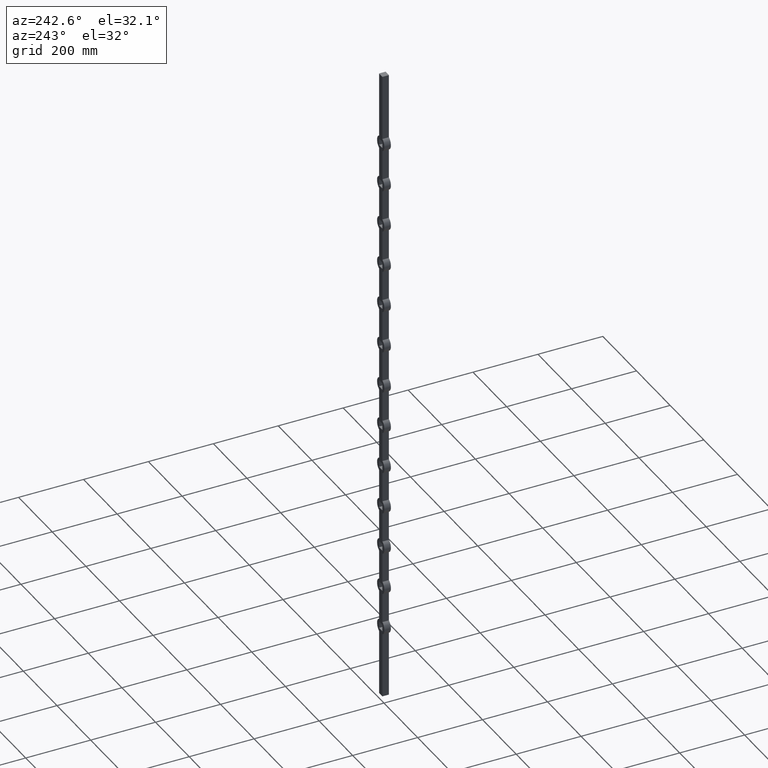
[diagram: clean part render]
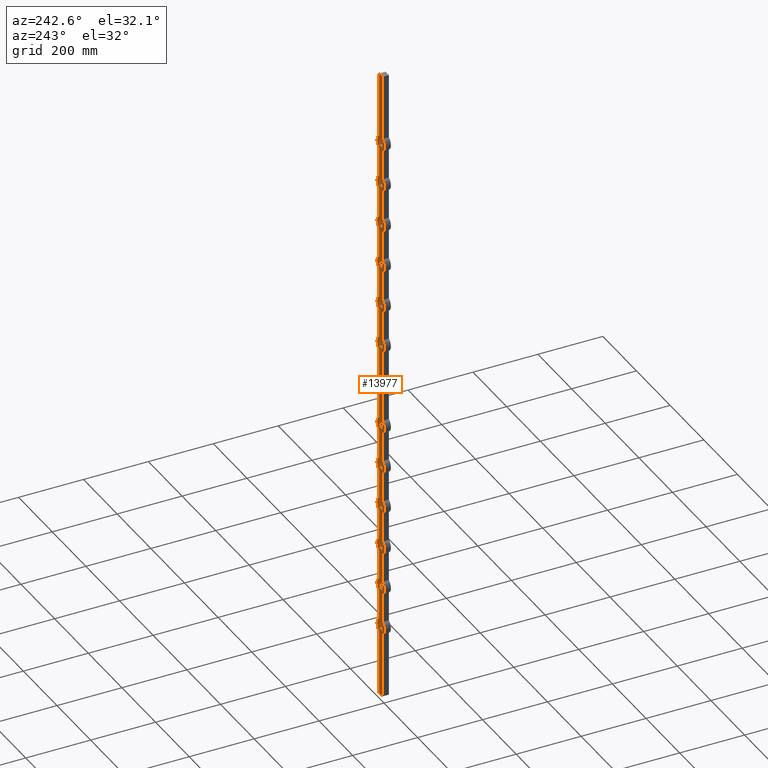
[diagram: same view with one face highlighted and labeled with its STEP entity id]
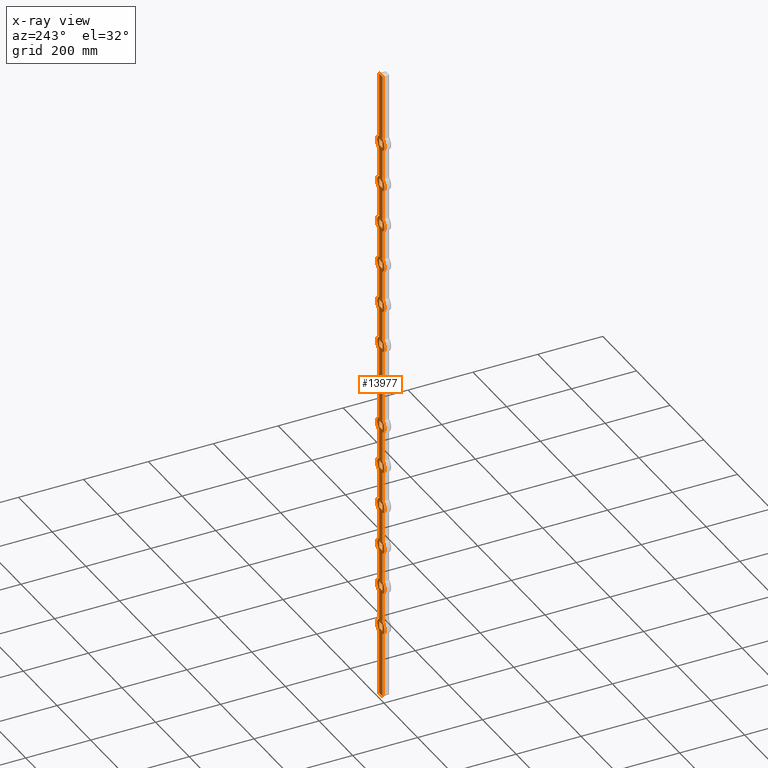
[diagram: x-ray of the same camera — body ghosted, the highlighted face saturated]
A machine part, auxiliary view. The second image highlights one B-rep face of the part: STEP entity #13977.
The next image is the same camera in x-ray: the body ghosted, the highlighted face saturated — about 0% of this face is hidden behind the body in this view.
In plain terms, the highlighted planar face has unit normal (0, -1, 0).
Its self-contained STEP definition (entity closure, byte-faithful):
#6 = EDGE_CURVE ( 'NONE', #8685, #11003, #10725, .T. ) ;
#17 = CARTESIAN_POINT ( 'NONE',  ( 0.000000000000000000, 10.00000000000000000, -780.0000000000000000 ) ) ;
#36 = CARTESIAN_POINT ( 'NONE',  ( 10.00000000000000711, 10.00000000000000000, -399.9999999999998863 ) ) ;
#71 = ORIENTED_EDGE ( 'NONE', *, *, #6399, .F. ) ;
#75 = CARTESIAN_POINT ( 'NONE',  ( -9.999999999999984013, 10.00000000000000000, -669.5959179422656007 ) ) ;
#85 = ORIENTED_EDGE ( 'NONE', *, *, #2953, .F. ) ;
#88 = ORIENTED_EDGE ( 'NONE', *, *, #12742, .F. ) ;
#92 = CIRCLE ( 'NONE', #2393, 22.00000000000002132 ) ;
#112 = DIRECTION ( 'NONE',  ( 0.000000000000000000, 1.000000000000000000, 0.000000000000000000 ) ) ;
#138 = LINE ( 'NONE', #1934, #6553 ) ;
#140 = LINE ( 'NONE', #1076, #4746 ) ;
#146 = CARTESIAN_POINT ( 'NONE',  ( -9.999999999999998224, 9.999999999999998224, 1000.000000000000000 ) ) ;
#159 = DIRECTION ( 'NONE',  ( 0.000000000000000000, 1.000000000000000000, 0.000000000000000000 ) ) ;
#167 = LINE ( 'NONE', #8199, #11929 ) ;
#174 = EDGE_CURVE ( 'NONE', #13809, #10270, #14295, .T. ) ;
#178 = DIRECTION ( 'NONE',  ( -8.673617379884028076E-17, -0.000000000000000000, -1.000000000000000000 ) ) ;
#179 = PLANE ( 'NONE',  #14577 ) ;
#182 = FACE_BOUND ( 'NONE', #8475, .T. ) ;
#187 = DIRECTION ( 'NONE',  ( -0.000000000000000000, -0.000000000000000000, -1.000000000000000000 ) ) ;
#200 = CARTESIAN_POINT ( 'NONE',  ( -9.999999999999998224, 9.999999999999998224, 1000.000000000000000 ) ) ;
#216 = ORIENTED_EDGE ( 'NONE', *, *, #8131, .T. ) ;
#217 = CARTESIAN_POINT ( 'NONE',  ( 10.00000000000000711, 10.00000000000000000, -530.0000000000000000 ) ) ;
#229 = VERTEX_POINT ( 'NONE', #4061 ) ;
#240 = DIRECTION ( 'NONE',  ( 0.000000000000000000, 1.000000000000000000, 0.000000000000000000 ) ) ;
#254 = EDGE_CURVE ( 'NONE', #3103, #8685, #6637, .T. ) ;
#265 = CARTESIAN_POINT ( 'NONE',  ( -10.00000000000001066, 10.00000000000000000, 770.0000000000000000 ) ) ;
#266 = ORIENTED_EDGE ( 'NONE', *, *, #9794, .F. ) ;
#296 = ORIENTED_EDGE ( 'NONE', *, *, #5435, .F. ) ;
#307 = CARTESIAN_POINT ( 'NONE',  ( -10.00000000000000888, 10.00000000000000000, 270.0000000000000000 ) ) ;
#324 = CARTESIAN_POINT ( 'NONE',  ( -10.00000000000001066, 10.00000000000000000, 120.0000000000000000 ) ) ;
#342 = AXIS2_PLACEMENT_3D ( 'NONE', #12614, #11563, #9283 ) ;
#347 = LINE ( 'NONE', #307, #6215 ) ;
#363 = VECTOR ( 'NONE', #12813, 1000.000000000000000 ) ;
#401 = EDGE_CURVE ( 'NONE', #12959, #4911, #12494, .T. ) ;
#404 = VECTOR ( 'NONE', #14091, 1000.000000000000000 ) ;
#417 = ORIENTED_EDGE ( 'NONE', *, *, #3353, .T. ) ;
#458 = VERTEX_POINT ( 'NONE', #13739 ) ;
#475 = CARTESIAN_POINT ( 'NONE',  ( 9.999999999999998224, 9.999999999999998224, 1000.000000000000000 ) ) ;
#482 = EDGE_CURVE ( 'NONE', #1761, #7099, #5721, .T. ) ;
#495 = VECTOR ( 'NONE', #3993, 1000.000000000000000 ) ;
#510 = VERTEX_POINT ( 'NONE', #13849 ) ;
#537 = EDGE_CURVE ( 'NONE', #4051, #13075, #2387, .T. ) ;
#586 = AXIS2_PLACEMENT_3D ( 'NONE', #12956, #10592, #7283 ) ;
#595 = VECTOR ( 'NONE', #11282, 1000.000000000000000 ) ;
#599 = CARTESIAN_POINT ( 'NONE',  ( -9.999999999999998224, 9.999999999999998224, -1000.000000000000000 ) ) ;
#600 = ORIENTED_EDGE ( 'NONE', *, *, #10990, .F. ) ;
#606 = CIRCLE ( 'NONE', #10385, 22.00000000000002132 ) ;
#623 = EDGE_CURVE ( 'NONE', #13138, #8108, #10711, .T. ) ;
#628 = CARTESIAN_POINT ( 'NONE',  ( -10.00000000000000178, 10.00000000000000000, 149.5959179422654302 ) ) ;
#648 = EDGE_CURVE ( 'NONE', #6176, #13791, #6908, .T. ) ;
#664 = DIRECTION ( 'NONE',  ( -1.000000000000000000, -0.000000000000000000, -0.000000000000000000 ) ) ;
#666 = CARTESIAN_POINT ( 'NONE',  ( 10.00000000000000533, 9.999999999999998224, 770.0000000000000000 ) ) ;
#673 = DIRECTION ( 'NONE',  ( 8.673617379884028076E-17, 0.000000000000000000, 1.000000000000000000 ) ) ;
#675 = EDGE_CURVE ( 'NONE', #1177, #9880, #138, .T. ) ;
#684 = CARTESIAN_POINT ( 'NONE',  ( 9.999999999999998224, 9.999999999999998224, 110.4040820577345841 ) ) ;
#717 = LINE ( 'NONE', #8425, #13688 ) ;
#724 = CARTESIAN_POINT ( 'NONE',  ( -10.00000000000000888, 10.00000000000000000, 660.0000000000000000 ) ) ;
#729 = LINE ( 'NONE', #36, #11932 ) ;
#760 = CARTESIAN_POINT ( 'NONE',  ( 10.00000000000000533, 9.999999999999998224, -660.0000000000001137 ) ) ;
#814 = CARTESIAN_POINT ( 'NONE',  ( -10.00000000000001066, 10.00000000000000000, -140.0000000000000000 ) ) ;
#834 = ORIENTED_EDGE ( 'NONE', *, *, #1731, .F. ) ;
#859 = ORIENTED_EDGE ( 'NONE', *, *, #3098, .T. ) ;
#861 = VECTOR ( 'NONE', #5699, 1000.000000000000000 ) ;
#908 = EDGE_CURVE ( 'NONE', #1222, #2029, #2997, .T. ) ;
#936 = CARTESIAN_POINT ( 'NONE',  ( -10.00000000000001066, 10.00000000000000000, -10.00000000000000888 ) ) ;
#974 = CARTESIAN_POINT ( 'NONE',  ( -9.999999999999984013, 10.00000000000000000, 409.5959179422654870 ) ) ;
#976 = DIRECTION ( 'NONE',  ( 8.673617379884028076E-17, 0.000000000000000000, 1.000000000000000000 ) ) ;
#1014 = ORIENTED_EDGE ( 'NONE', *, *, #8256, .F. ) ;
#1020 = ORIENTED_EDGE ( 'NONE', *, *, #5873, .F. ) ;
#1037 = LINE ( 'NONE', #4427, #1763 ) ;
#1053 = VECTOR ( 'NONE', #6196, 1000.000000000000000 ) ;
#1055 = ORIENTED_EDGE ( 'NONE', *, *, #14558, .T. ) ;
#1066 = DIRECTION ( 'NONE',  ( 0.000000000000000000, 0.000000000000000000, 1.000000000000000000 ) ) ;
#1074 = CARTESIAN_POINT ( 'NONE',  ( -9.999999999999984013, 10.00000000000000000, -799.5959179422654870 ) ) ;
#1076 = CARTESIAN_POINT ( 'NONE',  ( 10.00000000000000711, 10.00000000000000000, 120.0000000000000000 ) ) ;
#1091 = CARTESIAN_POINT ( 'NONE',  ( 0.000000000000000000, 10.00000000000000000, -780.0000000000000000 ) ) ;
#1103 = CARTESIAN_POINT ( 'NONE',  ( 0.000000000000000000, 10.00000000000000000, 650.0000000000000000 ) ) ;
#1112 = CARTESIAN_POINT ( 'NONE',  ( -10.00000000000001066, 10.00000000000000000, -10.00000000000000888 ) ) ;
#1120 = CARTESIAN_POINT ( 'NONE',  ( 10.00000000000000533, 9.999999999999998224, 380.0000000000000000 ) ) ;
#1128 = LINE ( 'NONE', #6113, #404 ) ;
#1134 = ORIENTED_EDGE ( 'NONE', *, *, #7508, .F. ) ;
#1163 = DIRECTION ( 'NONE',  ( 0.000000000000000000, 1.000000000000000000, 0.000000000000000000 ) ) ;
#1164 = ORIENTED_EDGE ( 'NONE', *, *, #13735, .T. ) ;
#1177 = VERTEX_POINT ( 'NONE', #2717 ) ;
#1181 = EDGE_LOOP ( 'NONE', ( #6677, #7036, #71, #10453, #3192, #10893, #11512, #4488, #9510, #6370, #3507, #14750, #2084, #7081, #88, #9207, #4524, #14504, #11839, #10191, #1020, #7643, #600, #13152, #5974, #11876, #5802, #11653, #11185, #11789, #6660, #1569, #8979, #9146, #13622, #5961, #417, #5599, #13942, #6858, #216, #10269, #1055, #9744, #13836, #13239, #4947, #3881, #2090, #14695, #859, #1164, #14741, #6694, #4555, #9492 ) ) ;
#1183 = CARTESIAN_POINT ( 'NONE',  ( 9.999999999999998224, 9.999999999999998224, 1000.000000000000000 ) ) ;
#1186 = CARTESIAN_POINT ( 'NONE',  ( -9.999999999999998224, 9.999999999999998224, 1000.000000000000000 ) ) ;
#1189 = VERTEX_POINT ( 'NONE', #12975 ) ;
#1192 = EDGE_LOOP ( 'NONE', ( #6139, #3279, #1134, #4251 ) ) ;
#1204 = EDGE_CURVE ( 'NONE', #14728, #11810, #7080, .T. ) ;
#1206 = DIRECTION ( 'NONE',  ( 0.000000000000000000, 0.000000000000000000, 1.000000000000000000 ) ) ;
#1222 = VERTEX_POINT ( 'NONE', #8617 ) ;
#1253 = EDGE_CURVE ( 'NONE', #10228, #458, #5677, .T. ) ;
#1257 = LINE ( 'NONE', #7595, #2516 ) ;
#1258 = CARTESIAN_POINT ( 'NONE',  ( -10.00000000000001066, 10.00000000000000000, -530.0000000000000000 ) ) ;
#1259 = CIRCLE ( 'NONE', #1716, 21.99999999999999289 ) ;
#1267 = CARTESIAN_POINT ( 'NONE',  ( 10.00000000000000888, 10.00000000000000000, 530.0000000000000000 ) ) ;
#1297 = CARTESIAN_POINT ( 'NONE',  ( -10.00000000000001066, 10.00000000000000000, 250.0000000000000000 ) ) ;
#1317 = VERTEX_POINT ( 'NONE', #14299 ) ;
#1369 = CIRCLE ( 'NONE', #11130, 22.00000000000002132 ) ;
#1370 = DIRECTION ( 'NONE',  ( -0.000000000000000000, -0.000000000000000000, -1.000000000000000000 ) ) ;
#1381 = ORIENTED_EDGE ( 'NONE', *, *, #1857, .F. ) ;
#1423 = DIRECTION ( 'NONE',  ( -0.000000000000000000, -0.000000000000000000, -1.000000000000000000 ) ) ;
#1431 = DIRECTION ( 'NONE',  ( 0.000000000000000000, 1.000000000000000000, 0.000000000000000000 ) ) ;
#1433 = VECTOR ( 'NONE', #9642, 1000.000000000000000 ) ;
#1445 = VECTOR ( 'NONE', #5634, 1000.000000000000000 ) ;
#1452 = DIRECTION ( 'NONE',  ( 0.000000000000000000, 0.000000000000000000, 1.000000000000000000 ) ) ;
#1508 = VECTOR ( 'NONE', #2718, 1000.000000000000000 ) ;
#1552 = EDGE_CURVE ( 'NONE', #6689, #14357, #11917, .T. ) ;
#1557 = CARTESIAN_POINT ( 'NONE',  ( -9.999999999999998224, 10.00000000000000000, 19.59591794226542660 ) ) ;
#1558 = ORIENTED_EDGE ( 'NONE', *, *, #10138, .F. ) ;
#1569 = ORIENTED_EDGE ( 'NONE', *, *, #1681, .T. ) ;
#1587 = DIRECTION ( 'NONE',  ( 8.673617379884028076E-17, 0.000000000000000000, 1.000000000000000000 ) ) ;
#1590 = CARTESIAN_POINT ( 'NONE',  ( 9.999999999999998224, 9.999999999999998224, 1000.000000000000000 ) ) ;
#1611 = CARTESIAN_POINT ( 'NONE',  ( 10.00000000000000533, 9.999999999999998224, -790.0000000000000000 ) ) ;
#1614 = LINE ( 'NONE', #11654, #11543 ) ;
#1628 = CARTESIAN_POINT ( 'NONE',  ( 9.999999999999998224, 9.999999999999998224, 1000.000000000000000 ) ) ;
#1645 = CARTESIAN_POINT ( 'NONE',  ( -9.999999999999998224, 10.00000000000000000, 760.4040820577346267 ) ) ;
#1681 = EDGE_CURVE ( 'NONE', #12409, #12770, #4963, .T. ) ;
#1694 = VERTEX_POINT ( 'NONE', #14744 ) ;
#1716 = AXIS2_PLACEMENT_3D ( 'NONE', #10334, #5469, #11485 ) ;
#1731 = EDGE_CURVE ( 'NONE', #6149, #6538, #9966, .T. ) ;
#1761 = VERTEX_POINT ( 'NONE', #6107 ) ;
#1763 = VECTOR ( 'NONE', #14751, 1000.000000000000000 ) ;
#1786 = VERTEX_POINT ( 'NONE', #1557 ) ;
#1787 = EDGE_CURVE ( 'NONE', #3339, #13791, #3174, .T. ) ;
#1796 = VECTOR ( 'NONE', #1423, 1000.000000000000000 ) ;
#1802 = CARTESIAN_POINT ( 'NONE',  ( 10.00000000000000888, 10.00000000000000000, -640.0000000000001137 ) ) ;
#1811 = CARTESIAN_POINT ( 'NONE',  ( 9.999999999999998224, 9.999999999999998224, 760.4040820577346267 ) ) ;
#1812 = CARTESIAN_POINT ( 'NONE',  ( -10.00000000000001066, 10.00000000000000000, 770.0000000000000000 ) ) ;
#1831 = VECTOR ( 'NONE', #3372, 1000.000000000000000 ) ;
#1849 = CARTESIAN_POINT ( 'NONE',  ( -10.00000000000000888, 10.00000000000000000, 10.00000000000000888 ) ) ;
#1857 = EDGE_CURVE ( 'NONE', #12521, #10730, #14416, .T. ) ;
#1873 = DIRECTION ( 'NONE',  ( 0.000000000000000000, 0.000000000000000000, 1.000000000000000000 ) ) ;
#1877 = EDGE_CURVE ( 'NONE', #11341, #10445, #13169, .T. ) ;
#1914 = AXIS2_PLACEMENT_3D ( 'NONE', #12414, #5510, #13804 ) ;
#1923 = DIRECTION ( 'NONE',  ( 1.000000000000000000, 0.000000000000000000, 0.000000000000000000 ) ) ;
#1928 = VERTEX_POINT ( 'NONE', #7473 ) ;
#1934 = CARTESIAN_POINT ( 'NONE',  ( 10.00000000000000711, 10.00000000000000000, 380.0000000000000000 ) ) ;
#1942 = DIRECTION ( 'NONE',  ( 8.673617379884028076E-17, 0.000000000000000000, 1.000000000000000000 ) ) ;
#1948 = EDGE_LOOP ( 'NONE', ( #11143, #3676, #8615, #1558 ) ) ;
#1989 = EDGE_CURVE ( 'NONE', #13244, #12959, #6391, .T. ) ;
#1997 = VECTOR ( 'NONE', #10681, 1000.000000000000000 ) ;
#1998 = VECTOR ( 'NONE', #1370, 1000.000000000000000 ) ;
#2022 = CIRCLE ( 'NONE', #8316, 21.99999999999999289 ) ;
#2029 = VERTEX_POINT ( 'NONE', #5160 ) ;
#2035 = CARTESIAN_POINT ( 'NONE',  ( -9.999999999999984013, 10.00000000000000000, 370.4040820577345698 ) ) ;
#2047 = CARTESIAN_POINT ( 'NONE',  ( 9.999999999999998224, 9.999999999999998224, -370.4040820577344562 ) ) ;
#2084 = ORIENTED_EDGE ( 'NONE', *, *, #5561, .F. ) ;
#2090 = ORIENTED_EDGE ( 'NONE', *, *, #7162, .T. ) ;
#2109 = EDGE_LOOP ( 'NONE', ( #8496, #4837, #85, #8485 ) ) ;
#2151 = VECTOR ( 'NONE', #13403, 1000.000000000000000 ) ;
#2156 = EDGE_CURVE ( 'NONE', #5279, #5947, #2669, .T. ) ;
#2203 = EDGE_CURVE ( 'NONE', #7220, #5433, #8347, .T. ) ;
#2248 = LINE ( 'NONE', #2872, #2763 ) ;
#2275 = DIRECTION ( 'NONE',  ( 0.000000000000000000, 0.000000000000000000, 1.000000000000000000 ) ) ;
#2277 = CARTESIAN_POINT ( 'NONE',  ( -10.00000000000000888, 10.00000000000000000, 530.0000000000000000 ) ) ;
#2279 = ORIENTED_EDGE ( 'NONE', *, *, #11290, .F. ) ;
#2292 = EDGE_CURVE ( 'NONE', #10635, #5734, #7087, .T. ) ;
#2293 = EDGE_LOOP ( 'NONE', ( #13321, #12163, #7013, #4696 ) ) ;
#2340 = CARTESIAN_POINT ( 'NONE',  ( -10.00000000000000888, 10.00000000000000000, -250.0000000000000000 ) ) ;
#2342 = CARTESIAN_POINT ( 'NONE',  ( 9.999999999999998224, 9.999999999999998224, -149.5959179422654302 ) ) ;
#2345 = AXIS2_PLACEMENT_3D ( 'NONE', #8304, #3721, #13820 ) ;
#2350 = CARTESIAN_POINT ( 'NONE',  ( 0.000000000000000000, 10.00000000000000000, 520.0000000000000000 ) ) ;
#2356 = FACE_OUTER_BOUND ( 'NONE', #1181, .T. ) ;
#2372 = CARTESIAN_POINT ( 'NONE',  ( -9.999999999999998224, 9.999999999999998224, 1000.000000000000000 ) ) ;
#2387 = LINE ( 'NONE', #10461, #9832 ) ;
#2393 = AXIS2_PLACEMENT_3D ( 'NONE', #1091, #11321, #7846 ) ;
#2401 = CARTESIAN_POINT ( 'NONE',  ( 9.999999999999998224, 9.999999999999998224, 370.4040820577345698 ) ) ;
#2439 = ORIENTED_EDGE ( 'NONE', *, *, #10858, .F. ) ;
#2444 = VERTEX_POINT ( 'NONE', #14460 ) ;
#2460 = VERTEX_POINT ( 'NONE', #4295 ) ;
#2468 = VERTEX_POINT ( 'NONE', #974 ) ;
#2471 = EDGE_CURVE ( 'NONE', #10916, #13473, #4408, .T. ) ;
#2488 = CIRCLE ( 'NONE', #7124, 22.00000000000002132 ) ;
#2516 = VECTOR ( 'NONE', #13468, 1000.000000000000000 ) ;
#2566 = CARTESIAN_POINT ( 'NONE',  ( -10.00000000000000888, 10.00000000000000000, 660.0000000000000000 ) ) ;
#2597 = EDGE_CURVE ( 'NONE', #13455, #1317, #2488, .T. ) ;
#2628 = ORIENTED_EDGE ( 'NONE', *, *, #11263, .F. ) ;
#2655 = VECTOR ( 'NONE', #11886, 1000.000000000000000 ) ;
#2661 = DIRECTION ( 'NONE',  ( -0.000000000000000000, -0.000000000000000000, -1.000000000000000000 ) ) ;
#2669 = LINE ( 'NONE', #4450, #10648 ) ;
#2715 = EDGE_CURVE ( 'NONE', #14036, #12550, #8517, .T. ) ;
#2717 = CARTESIAN_POINT ( 'NONE',  ( 10.00000000000000888, 10.00000000000000000, 400.0000000000000000 ) ) ;
#2718 = DIRECTION ( 'NONE',  ( -0.000000000000000000, -0.000000000000000000, -1.000000000000000000 ) ) ;
#2761 = DIRECTION ( 'NONE',  ( -0.000000000000000000, -0.000000000000000000, -1.000000000000000000 ) ) ;
#2763 = VECTOR ( 'NONE', #14360, 1000.000000000000000 ) ;
#2771 = CARTESIAN_POINT ( 'NONE',  ( -10.00000000000001066, 10.00000000000000000, -140.0000000000000000 ) ) ;
#2818 = VERTEX_POINT ( 'NONE', #1074 ) ;
#2826 = EDGE_CURVE ( 'NONE', #4367, #3103, #1037, .T. ) ;
#2827 = LINE ( 'NONE', #146, #2834 ) ;
#2833 = CARTESIAN_POINT ( 'NONE',  ( 0.000000000000000000, 10.00000000000000000, -650.0000000000001137 ) ) ;
#2834 = VECTOR ( 'NONE', #3330, 1000.000000000000000 ) ;
#2866 = DIRECTION ( 'NONE',  ( 0.000000000000000000, 1.000000000000000000, 0.000000000000000000 ) ) ;
#2872 = CARTESIAN_POINT ( 'NONE',  ( -10.00000000000000888, 10.00000000000000000, 790.0000000000000000 ) ) ;
#2883 = CARTESIAN_POINT ( 'NONE',  ( -10.00000000000001066, 10.00000000000000000, 770.0000000000000000 ) ) ;
#2905 = LINE ( 'NONE', #13722, #2991 ) ;
#2910 = CARTESIAN_POINT ( 'NONE',  ( 10.00000000000000711, 10.00000000000000000, 510.0000000000000000 ) ) ;
#2953 = EDGE_CURVE ( 'NONE', #1189, #4051, #12586, .T. ) ;
#2963 = ORIENTED_EDGE ( 'NONE', *, *, #13896, .F. ) ;
#2965 = DIRECTION ( 'NONE',  ( -0.000000000000000000, -0.000000000000000000, -1.000000000000000000 ) ) ;
#2991 = VECTOR ( 'NONE', #6910, 1000.000000000000000 ) ;
#2993 = EDGE_CURVE ( 'NONE', #14172, #12926, #6355, .T. ) ;
#2997 = CIRCLE ( 'NONE', #6885, 22.00000000000000711 ) ;
#3010 = EDGE_CURVE ( 'NONE', #11627, #8284, #9572, .T. ) ;
#3038 = CARTESIAN_POINT ( 'NONE',  ( 10.00000000000000711, 10.00000000000000000, -10.00000000000000888 ) ) ;
#3045 = CARTESIAN_POINT ( 'NONE',  ( 9.999999999999998224, 9.999999999999998224, 799.5959179422654870 ) ) ;
#3083 = DIRECTION ( 'NONE',  ( 0.000000000000000000, 0.000000000000000000, 1.000000000000000000 ) ) ;
#3094 = CARTESIAN_POINT ( 'NONE',  ( -9.999999999999984013, 10.00000000000000000, 500.4040820577345698 ) ) ;
#3096 = LINE ( 'NONE', #2910, #10212 ) ;
#3098 = EDGE_CURVE ( 'NONE', #10059, #12201, #6712, .T. ) ;
#3103 = VERTEX_POINT ( 'NONE', #1802 ) ;
#3143 = ORIENTED_EDGE ( 'NONE', *, *, #6059, .F. ) ;
#3159 = CARTESIAN_POINT ( 'NONE',  ( -10.00000000000000888, 10.00000000000000000, 400.0000000000000000 ) ) ;
#3174 = LINE ( 'NONE', #10575, #11024 ) ;
#3177 = LINE ( 'NONE', #14283, #4059 ) ;
#3192 = ORIENTED_EDGE ( 'NONE', *, *, #6835, .F. ) ;
#3202 = LINE ( 'NONE', #4863, #1998 ) ;
#3211 = CARTESIAN_POINT ( 'NONE',  ( 9.999999999999998224, 9.999999999999998224, 19.59591794226542660 ) ) ;
#3212 = EDGE_CURVE ( 'NONE', #6480, #6716, #9029, .T. ) ;
#3236 = AXIS2_PLACEMENT_3D ( 'NONE', #10701, #1431, #8271 ) ;
#3260 = ORIENTED_EDGE ( 'NONE', *, *, #4134, .F. ) ;
#3279 = ORIENTED_EDGE ( 'NONE', *, *, #2993, .F. ) ;
#3294 = VERTEX_POINT ( 'NONE', #7704 ) ;
#3301 = ORIENTED_EDGE ( 'NONE', *, *, #10603, .F. ) ;
#3330 = DIRECTION ( 'NONE',  ( -1.000000000000000000, -0.000000000000000000, -0.000000000000000000 ) ) ;
#3339 = VERTEX_POINT ( 'NONE', #8348 ) ;
#3343 = VECTOR ( 'NONE', #664, 1000.000000000000000 ) ;
#3345 = VERTEX_POINT ( 'NONE', #14228 ) ;
#3353 = EDGE_CURVE ( 'NONE', #13290, #11110, #6166, .T. ) ;
#3371 = CARTESIAN_POINT ( 'NONE',  ( -9.999999999999984013, 10.00000000000000000, -500.4040820577345698 ) ) ;
#3372 = DIRECTION ( 'NONE',  ( -0.000000000000000000, -0.000000000000000000, -1.000000000000000000 ) ) ;
#3379 = FACE_BOUND ( 'NONE', #1192, .T. ) ;
#3394 = DIRECTION ( 'NONE',  ( -0.000000000000000000, -0.000000000000000000, -1.000000000000000000 ) ) ;
#3397 = LINE ( 'NONE', #10010, #9105 ) ;
#3402 = EDGE_CURVE ( 'NONE', #8948, #8681, #1369, .T. ) ;
#3404 = CARTESIAN_POINT ( 'NONE',  ( -10.00000000000001066, 10.00000000000000000, -270.0000000000000000 ) ) ;
#3412 = CARTESIAN_POINT ( 'NONE',  ( 0.000000000000000000, 10.00000000000000000, 260.0000000000000000 ) ) ;
#3430 = DIRECTION ( 'NONE',  ( -0.000000000000000000, -0.000000000000000000, -1.000000000000000000 ) ) ;
#3503 = VECTOR ( 'NONE', #12811, 1000.000000000000000 ) ;
#3507 = ORIENTED_EDGE ( 'NONE', *, *, #14252, .F. ) ;
#3529 = LINE ( 'NONE', #1590, #4595 ) ;
#3553 = FACE_BOUND ( 'NONE', #12526, .T. ) ;
#3564 = CARTESIAN_POINT ( 'NONE',  ( 9.999999999999998224, 9.999999999999998224, -1000.000000000000000 ) ) ;
#3599 = EDGE_CURVE ( 'NONE', #12926, #10228, #8122, .T. ) ;
#3600 = LINE ( 'NONE', #10907, #12337 ) ;
#3617 = ORIENTED_EDGE ( 'NONE', *, *, #9620, .F. ) ;
#3676 = ORIENTED_EDGE ( 'NONE', *, *, #11586, .F. ) ;
#3683 = DIRECTION ( 'NONE',  ( 8.673617379884028076E-17, 0.000000000000000000, 1.000000000000000000 ) ) ;
#3698 = ORIENTED_EDGE ( 'NONE', *, *, #4851, .F. ) ;
#3721 = DIRECTION ( 'NONE',  ( 0.000000000000000000, 1.000000000000000000, 0.000000000000000000 ) ) ;
#3741 = VECTOR ( 'NONE', #8192, 1000.000000000000000 ) ;
#3810 = CARTESIAN_POINT ( 'NONE',  ( -10.00000000000000888, 10.00000000000000000, 10.00000000000000888 ) ) ;
#3827 = ORIENTED_EDGE ( 'NONE', *, *, #1552, .F. ) ;
#3832 = VERTEX_POINT ( 'NONE', #8395 ) ;
#3864 = CARTESIAN_POINT ( 'NONE',  ( 0.000000000000000000, 10.00000000000000000, -650.0000000000001137 ) ) ;
#3881 = ORIENTED_EDGE ( 'NONE', *, *, #11138, .T. ) ;
#3907 = VECTOR ( 'NONE', #673, 1000.000000000000000 ) ;
#3937 = DIRECTION ( 'NONE',  ( -0.000000000000000000, -0.000000000000000000, -1.000000000000000000 ) ) ;
#3954 = VERTEX_POINT ( 'NONE', #666 ) ;
#3993 = DIRECTION ( 'NONE',  ( -0.000000000000000000, -0.000000000000000000, -1.000000000000000000 ) ) ;
#4015 = DIRECTION ( 'NONE',  ( 0.000000000000000000, 1.000000000000000000, 0.000000000000000000 ) ) ;
#4020 = CARTESIAN_POINT ( 'NONE',  ( -10.00000000000000888, 10.00000000000000000, -379.9999999999998863 ) ) ;
#4044 = CARTESIAN_POINT ( 'NONE',  ( -10.00000000000001066, 10.00000000000000000, -530.0000000000000000 ) ) ;
#4051 = VERTEX_POINT ( 'NONE', #10940 ) ;
#4059 = VECTOR ( 'NONE', #7417, 1000.000000000000000 ) ;
#4061 = CARTESIAN_POINT ( 'NONE',  ( -10.00000000000000888, 10.00000000000000000, -120.0000000000000000 ) ) ;
#4081 = DIRECTION ( 'NONE',  ( 1.000000000000000000, 0.000000000000000000, 0.000000000000000000 ) ) ;
#4090 = DIRECTION ( 'NONE',  ( 0.000000000000000000, 0.000000000000000000, 1.000000000000000000 ) ) ;
#4117 = CARTESIAN_POINT ( 'NONE',  ( -9.999999999999984013, 10.00000000000000000, -630.4040820577346267 ) ) ;
#4134 = EDGE_CURVE ( 'NONE', #13754, #6149, #9723, .T. ) ;
#4191 = CARTESIAN_POINT ( 'NONE',  ( 10.00000000000000533, 9.999999999999998224, 640.0000000000000000 ) ) ;
#4214 = DIRECTION ( 'NONE',  ( 0.000000000000000000, 0.000000000000000000, 1.000000000000000000 ) ) ;
#4223 = EDGE_CURVE ( 'NONE', #5100, #12618, #92, .T. ) ;
#4244 = CARTESIAN_POINT ( 'NONE',  ( 9.999999999999998224, 9.999999999999998224, 1000.000000000000000 ) ) ;
#4251 = ORIENTED_EDGE ( 'NONE', *, *, #1253, .F. ) ;
#4266 = DIRECTION ( 'NONE',  ( 0.000000000000000000, 1.000000000000000000, 0.000000000000000000 ) ) ;
#4288 = DIRECTION ( 'NONE',  ( -8.673617379884028076E-17, -0.000000000000000000, -1.000000000000000000 ) ) ;
#4295 = CARTESIAN_POINT ( 'NONE',  ( -10.00000000000001066, 10.00000000000000000, -790.0000000000000000 ) ) ;
#4296 = DIRECTION ( 'NONE',  ( -0.000000000000000000, -0.000000000000000000, -1.000000000000000000 ) ) ;
#4320 = CARTESIAN_POINT ( 'NONE',  ( 9.999999999999998224, 9.999999999999998224, 630.4040820577346267 ) ) ;
#4321 = LINE ( 'NONE', #9382, #12515 ) ;
#4333 = CARTESIAN_POINT ( 'NONE',  ( 9.999999999999998224, 9.999999999999998224, -630.4040820577346267 ) ) ;
#4344 = CARTESIAN_POINT ( 'NONE',  ( 9.999999999999998224, 9.999999999999998224, 240.4040820577345983 ) ) ;
#4367 = VERTEX_POINT ( 'NONE', #14432 ) ;
#4374 = EDGE_CURVE ( 'NONE', #11487, #1761, #14711, .T. ) ;
#4408 = LINE ( 'NONE', #5348, #14034 ) ;
#4420 = VERTEX_POINT ( 'NONE', #1811 ) ;
#4426 = EDGE_CURVE ( 'NONE', #4536, #10059, #5250, .T. ) ;
#4427 = CARTESIAN_POINT ( 'NONE',  ( -10.00000000000000888, 10.00000000000000000, -640.0000000000001137 ) ) ;
#4445 = LINE ( 'NONE', #9903, #3907 ) ;
#4449 = CARTESIAN_POINT ( 'NONE',  ( 9.999999999999998224, 9.999999999999998224, -500.4040820577345698 ) ) ;
#4450 = CARTESIAN_POINT ( 'NONE',  ( 10.00000000000000711, 10.00000000000000000, -790.0000000000000000 ) ) ;
#4460 = CARTESIAN_POINT ( 'NONE',  ( -10.00000000000000888, 10.00000000000000000, 140.0000000000000000 ) ) ;
#4488 = ORIENTED_EDGE ( 'NONE', *, *, #11026, .T. ) ;
#4505 = EDGE_CURVE ( 'NONE', #6538, #2444, #13102, .T. ) ;
#4520 = ORIENTED_EDGE ( 'NONE', *, *, #9410, .F. ) ;
#4524 = ORIENTED_EDGE ( 'NONE', *, *, #8536, .F. ) ;
#4536 = VERTEX_POINT ( 'NONE', #4449 ) ;
#4538 = DIRECTION ( 'NONE',  ( -8.673617379884028076E-17, -0.000000000000000000, -1.000000000000000000 ) ) ;
#4555 = ORIENTED_EDGE ( 'NONE', *, *, #13280, .T. ) ;
#4558 = DIRECTION ( 'NONE',  ( -8.673617379884028076E-17, -0.000000000000000000, -1.000000000000000000 ) ) ;
#4566 = CARTESIAN_POINT ( 'NONE',  ( 10.00000000000000533, 9.999999999999998224, -530.0000000000000000 ) ) ;
#4573 = AXIS2_PLACEMENT_3D ( 'NONE', #12682, #159, #10254 ) ;
#4595 = VECTOR ( 'NONE', #11800, 1000.000000000000000 ) ;
#4637 = DIRECTION ( 'NONE',  ( -0.000000000000000000, -0.000000000000000000, -1.000000000000000000 ) ) ;
#4696 = ORIENTED_EDGE ( 'NONE', *, *, #8200, .F. ) ;
#4737 = AXIS2_PLACEMENT_3D ( 'NONE', #10901, #2866, #4090 ) ;
#4746 = VECTOR ( 'NONE', #5709, 1000.000000000000000 ) ;
#4749 = VECTOR ( 'NONE', #3937, 1000.000000000000000 ) ;
#4771 = VECTOR ( 'NONE', #13076, 1000.000000000000000 ) ;
#4778 = CARTESIAN_POINT ( 'NONE',  ( 10.00000000000000533, 9.999999999999998224, 510.0000000000000000 ) ) ;
#4825 = CARTESIAN_POINT ( 'NONE',  ( -10.00000000000000888, 10.00000000000000000, -379.9999999999998863 ) ) ;
#4837 = ORIENTED_EDGE ( 'NONE', *, *, #537, .F. ) ;
#4851 = EDGE_CURVE ( 'NONE', #7213, #10947, #2248, .T. ) ;
#4863 = CARTESIAN_POINT ( 'NONE',  ( 9.999999999999998224, 9.999999999999998224, 1000.000000000000000 ) ) ;
#4892 = ORIENTED_EDGE ( 'NONE', *, *, #675, .F. ) ;
#4911 = VERTEX_POINT ( 'NONE', #10819 ) ;
#4926 = VECTOR ( 'NONE', #5522, 1000.000000000000000 ) ;
#4942 = ORIENTED_EDGE ( 'NONE', *, *, #8014, .F. ) ;
#4947 = ORIENTED_EDGE ( 'NONE', *, *, #5830, .T. ) ;
#4963 = CIRCLE ( 'NONE', #5104, 22.00000000000002132 ) ;
#5021 = LINE ( 'NONE', #6575, #10541 ) ;
#5036 = VECTOR ( 'NONE', #2965, 1000.000000000000000 ) ;
#5045 = DIRECTION ( 'NONE',  ( -1.000000000000000000, -0.000000000000000000, -0.000000000000000000 ) ) ;
#5094 = CARTESIAN_POINT ( 'NONE',  ( 10.00000000000000888, 10.00000000000000000, -510.0000000000000000 ) ) ;
#5100 = VERTEX_POINT ( 'NONE', #13932 ) ;
#5104 = AXIS2_PLACEMENT_3D ( 'NONE', #1103, #11285, #1066 ) ;
#5128 = CARTESIAN_POINT ( 'NONE',  ( 10.00000000000000888, 10.00000000000000000, -770.0000000000000000 ) ) ;
#5149 = LINE ( 'NONE', #6101, #1433 ) ;
#5160 = CARTESIAN_POINT ( 'NONE',  ( -10.00000000000000178, 10.00000000000000000, -110.4040820577345841 ) ) ;
#5237 = VERTEX_POINT ( 'NONE', #13007 ) ;
#5239 = EDGE_CURVE ( 'NONE', #4420, #12409, #14616, .T. ) ;
#5246 = CARTESIAN_POINT ( 'NONE',  ( 10.00000000000000711, 10.00000000000000000, -660.0000000000001137 ) ) ;
#5250 = CIRCLE ( 'NONE', #1914, 22.00000000000002132 ) ;
#5279 = VERTEX_POINT ( 'NONE', #5128 ) ;
#5308 = LINE ( 'NONE', #14391, #3343 ) ;
#5317 = LINE ( 'NONE', #200, #1796 ) ;
#5343 = CARTESIAN_POINT ( 'NONE',  ( -10.00000000000001066, 10.00000000000000000, -660.0000000000001137 ) ) ;
#5345 = FACE_BOUND ( 'NONE', #10004, .T. ) ;
#5348 = CARTESIAN_POINT ( 'NONE',  ( -10.00000000000001066, 10.00000000000000000, 640.0000000000000000 ) ) ;
#5394 = VECTOR ( 'NONE', #10755, 1000.000000000000000 ) ;
#5417 = ORIENTED_EDGE ( 'NONE', *, *, #2292, .F. ) ;
#5433 = VERTEX_POINT ( 'NONE', #14542 ) ;
#5435 = EDGE_CURVE ( 'NONE', #8284, #14036, #729, .T. ) ;
#5469 = DIRECTION ( 'NONE',  ( 0.000000000000000000, 1.000000000000000000, 0.000000000000000000 ) ) ;
#5481 = CARTESIAN_POINT ( 'NONE',  ( 10.00000000000000888, 10.00000000000000000, -379.9999999999998863 ) ) ;
#5490 = CARTESIAN_POINT ( 'NONE',  ( -10.00000000000001066, 10.00000000000000000, 510.0000000000000000 ) ) ;
#5492 = EDGE_CURVE ( 'NONE', #4911, #9717, #1259, .T. ) ;
#5510 = DIRECTION ( 'NONE',  ( 0.000000000000000000, 1.000000000000000000, 0.000000000000000000 ) ) ;
#5522 = DIRECTION ( 'NONE',  ( -0.000000000000000000, -0.000000000000000000, -1.000000000000000000 ) ) ;
#5529 = CARTESIAN_POINT ( 'NONE',  ( 9.999999999999998224, 9.999999999999998224, 279.5959179422654870 ) ) ;
#5556 = CARTESIAN_POINT ( 'NONE',  ( 10.00000000000000888, 10.00000000000000000, 270.0000000000000000 ) ) ;
#5561 = EDGE_CURVE ( 'NONE', #5628, #2029, #12805, .T. ) ;
#5566 = ORIENTED_EDGE ( 'NONE', *, *, #9624, .F. ) ;
#5599 = ORIENTED_EDGE ( 'NONE', *, *, #8821, .T. ) ;
#5628 = VERTEX_POINT ( 'NONE', #12952 ) ;
#5634 = DIRECTION ( 'NONE',  ( 1.000000000000000000, 0.000000000000000000, 0.000000000000000000 ) ) ;
#5637 = CARTESIAN_POINT ( 'NONE',  ( 0.000000000000000000, 10.00000000000000000, 390.0000000000000000 ) ) ;
#5645 = VERTEX_POINT ( 'NONE', #9808 ) ;
#5677 = LINE ( 'NONE', #4044, #12617 ) ;
#5680 = CARTESIAN_POINT ( 'NONE',  ( 0.000000000000000000, 10.00000000000000000, -389.9999999999998863 ) ) ;
#5689 = CARTESIAN_POINT ( 'NONE',  ( -10.00000000000001066, 10.00000000000000000, -790.0000000000000000 ) ) ;
#5699 = DIRECTION ( 'NONE',  ( 8.673617379884028076E-17, 0.000000000000000000, 1.000000000000000000 ) ) ;
#5709 = DIRECTION ( 'NONE',  ( -8.673617379884028076E-17, -0.000000000000000000, -1.000000000000000000 ) ) ;
#5721 = CIRCLE ( 'NONE', #14527, 21.99999999999999289 ) ;
#5734 = VERTEX_POINT ( 'NONE', #12247 ) ;
#5743 = CIRCLE ( 'NONE', #4573, 22.00000000000002132 ) ;
#5752 = EDGE_CURVE ( 'NONE', #510, #3294, #9178, .T. ) ;
#5777 = EDGE_CURVE ( 'NONE', #7246, #3294, #12997, .T. ) ;
#5802 = ORIENTED_EDGE ( 'NONE', *, *, #1204, .F. ) ;
#5827 = VECTOR ( 'NONE', #11364, 1000.000000000000000 ) ;
#5830 = EDGE_CURVE ( 'NONE', #9717, #14306, #2905, .T. ) ;
#5835 = DIRECTION ( 'NONE',  ( -0.000000000000000000, -0.000000000000000000, -1.000000000000000000 ) ) ;
#5866 = DIRECTION ( 'NONE',  ( 1.000000000000000000, 0.000000000000000000, 0.000000000000000000 ) ) ;
#5873 = EDGE_CURVE ( 'NONE', #7220, #2468, #167, .T. ) ;
#5913 = LINE ( 'NONE', #8573, #5394 ) ;
#5947 = VERTEX_POINT ( 'NONE', #1611 ) ;
#5955 = VECTOR ( 'NONE', #4538, 1000.000000000000000 ) ;
#5961 = ORIENTED_EDGE ( 'NONE', *, *, #13163, .T. ) ;
#5970 = VERTEX_POINT ( 'NONE', #9542 ) ;
#5974 = ORIENTED_EDGE ( 'NONE', *, *, #13430, .F. ) ;
#5978 = EDGE_CURVE ( 'NONE', #13473, #6689, #5149, .T. ) ;
#5988 = VECTOR ( 'NONE', #7902, 1000.000000000000000 ) ;
#6003 = VECTOR ( 'NONE', #11741, 1000.000000000000000 ) ;
#6033 = EDGE_CURVE ( 'NONE', #10561, #7213, #9787, .T. ) ;
#6059 = EDGE_CURVE ( 'NONE', #3954, #10561, #9255, .T. ) ;
#6090 = CARTESIAN_POINT ( 'NONE',  ( -10.00000000000001066, 10.00000000000000000, 510.0000000000000000 ) ) ;
#6101 = CARTESIAN_POINT ( 'NONE',  ( -10.00000000000001066, 10.00000000000000000, 640.0000000000000000 ) ) ;
#6107 = CARTESIAN_POINT ( 'NONE',  ( 9.999999999999998224, 9.999999999999998224, 149.5959179422654302 ) ) ;
#6113 = CARTESIAN_POINT ( 'NONE',  ( 10.00000000000000711, 10.00000000000000000, 250.0000000000000000 ) ) ;
#6117 = ORIENTED_EDGE ( 'NONE', *, *, #4505, .F. ) ;
#6138 = CARTESIAN_POINT ( 'NONE',  ( 9.999999999999998224, 9.999999999999998224, 1000.000000000000000 ) ) ;
#6139 = ORIENTED_EDGE ( 'NONE', *, *, #3599, .F. ) ;
#6145 = DIRECTION ( 'NONE',  ( 0.000000000000000000, 1.000000000000000000, 0.000000000000000000 ) ) ;
#6149 = VERTEX_POINT ( 'NONE', #1849 ) ;
#6166 = LINE ( 'NONE', #14072, #11501 ) ;
#6170 = LINE ( 'NONE', #2771, #8831 ) ;
#6171 = VERTEX_POINT ( 'NONE', #8770 ) ;
#6176 = VERTEX_POINT ( 'NONE', #11082 ) ;
#6190 = CARTESIAN_POINT ( 'NONE',  ( 9.999999999999998224, 9.999999999999998224, 1000.000000000000000 ) ) ;
#6196 = DIRECTION ( 'NONE',  ( -1.000000000000000000, -0.000000000000000000, -0.000000000000000000 ) ) ;
#6212 = CARTESIAN_POINT ( 'NONE',  ( -10.00000000000001066, 10.00000000000000000, -10.00000000000000888 ) ) ;
#6215 = VECTOR ( 'NONE', #5866, 1000.000000000000000 ) ;
#6238 = CARTESIAN_POINT ( 'NONE',  ( 9.999999999999998224, 9.999999999999998224, 1000.000000000000000 ) ) ;
#6282 = DIRECTION ( 'NONE',  ( -0.000000000000000000, -0.000000000000000000, -1.000000000000000000 ) ) ;
#6349 = EDGE_LOOP ( 'NONE', ( #1381, #8959, #266, #11324 ) ) ;
#6355 = LINE ( 'NONE', #217, #13499 ) ;
#6360 = DIRECTION ( 'NONE',  ( 0.000000000000000000, 0.000000000000000000, 1.000000000000000000 ) ) ;
#6370 = ORIENTED_EDGE ( 'NONE', *, *, #6965, .T. ) ;
#6388 = ORIENTED_EDGE ( 'NONE', *, *, #5978, .F. ) ;
#6391 = CIRCLE ( 'NONE', #6633, 22.00000000000000711 ) ;
#6399 = EDGE_CURVE ( 'NONE', #8948, #9515, #1614, .T. ) ;
#6408 = EDGE_CURVE ( 'NONE', #10816, #8654, #3529, .T. ) ;
#6412 = FACE_BOUND ( 'NONE', #2109, .T. ) ;
#6480 = VERTEX_POINT ( 'NONE', #10605 ) ;
#6538 = VERTEX_POINT ( 'NONE', #9377 ) ;
#6543 = DIRECTION ( 'NONE',  ( 1.000000000000000000, 0.000000000000000000, 0.000000000000000000 ) ) ;
#6553 = VECTOR ( 'NONE', #4288, 1000.000000000000000 ) ;
#6558 = LINE ( 'NONE', #7090, #10289 ) ;
#6562 = LINE ( 'NONE', #3404, #861 ) ;
#6575 = CARTESIAN_POINT ( 'NONE',  ( -10.00000000000001066, 10.00000000000000000, 380.0000000000000000 ) ) ;
#6627 = EDGE_CURVE ( 'NONE', #6833, #11375, #347, .T. ) ;
#6628 = DIRECTION ( 'NONE',  ( 8.673617379884028076E-17, 0.000000000000000000, 1.000000000000000000 ) ) ;
#6633 = AXIS2_PLACEMENT_3D ( 'NONE', #13145, #13186, #6360 ) ;
#6637 = LINE ( 'NONE', #5246, #11974 ) ;
#6660 = ORIENTED_EDGE ( 'NONE', *, *, #5239, .T. ) ;
#6677 = ORIENTED_EDGE ( 'NONE', *, *, #6740, .F. ) ;
#6678 = VECTOR ( 'NONE', #9829, 1000.000000000000000 ) ;
#6689 = VERTEX_POINT ( 'NONE', #2566 ) ;
#6694 = ORIENTED_EDGE ( 'NONE', *, *, #4223, .T. ) ;
#6712 = LINE ( 'NONE', #14266, #495 ) ;
#6716 = VERTEX_POINT ( 'NONE', #1267 ) ;
#6738 = DIRECTION ( 'NONE',  ( 0.000000000000000000, 0.000000000000000000, 1.000000000000000000 ) ) ;
#6740 = EDGE_CURVE ( 'NONE', #2818, #10445, #5317, .T. ) ;
#6741 = DIRECTION ( 'NONE',  ( 0.000000000000000000, 1.000000000000000000, 0.000000000000000000 ) ) ;
#6795 = CIRCLE ( 'NONE', #9216, 22.00000000000002132 ) ;
#6833 = VERTEX_POINT ( 'NONE', #13524 ) ;
#6835 = EDGE_CURVE ( 'NONE', #6176, #8681, #6558, .T. ) ;
#6858 = ORIENTED_EDGE ( 'NONE', *, *, #482, .T. ) ;
#6885 = AXIS2_PLACEMENT_3D ( 'NONE', #8738, #4266, #4214 ) ;
#6900 = CARTESIAN_POINT ( 'NONE',  ( 10.00000000000000533, 9.999999999999998224, 250.0000000000000000 ) ) ;
#6908 = CIRCLE ( 'NONE', #7168, 22.00000000000002132 ) ;
#6910 = DIRECTION ( 'NONE',  ( -0.000000000000000000, -0.000000000000000000, -1.000000000000000000 ) ) ;
#6927 = VECTOR ( 'NONE', #9294, 1000.000000000000000 ) ;
#6937 = LINE ( 'NONE', #9273, #7832 ) ;
#6965 = EDGE_CURVE ( 'NONE', #9778, #7063, #11722, .T. ) ;
#6976 = CARTESIAN_POINT ( 'NONE',  ( 0.000000000000000000, 10.00000000000000000, 130.0000000000000000 ) ) ;
#6981 = CARTESIAN_POINT ( 'NONE',  ( 10.00000000000000711, 10.00000000000000000, -140.0000000000000000 ) ) ;
#6995 = LINE ( 'NONE', #475, #1508 ) ;
#7013 = ORIENTED_EDGE ( 'NONE', *, *, #2826, .F. ) ;
#7036 = ORIENTED_EDGE ( 'NONE', *, *, #14441, .T. ) ;
#7063 = VERTEX_POINT ( 'NONE', #9471 ) ;
#7080 = LINE ( 'NONE', #10965, #11184 ) ;
#7081 = ORIENTED_EDGE ( 'NONE', *, *, #9973, .T. ) ;
#7087 = LINE ( 'NONE', #6090, #1053 ) ;
#7090 = CARTESIAN_POINT ( 'NONE',  ( -9.999999999999998224, 9.999999999999998224, 1000.000000000000000 ) ) ;
#7095 = EDGE_CURVE ( 'NONE', #14352, #12343, #10133, .T. ) ;
#7099 = VERTEX_POINT ( 'NONE', #684 ) ;
#7104 = CARTESIAN_POINT ( 'NONE',  ( -10.00000000000000888, 10.00000000000000000, -120.0000000000000000 ) ) ;
#7124 = AXIS2_PLACEMENT_3D ( 'NONE', #2350, #8018, #6738 ) ;
#7132 = LINE ( 'NONE', #7104, #363 ) ;
#7162 = EDGE_CURVE ( 'NONE', #3345, #4536, #12771, .T. ) ;
#7168 = AXIS2_PLACEMENT_3D ( 'NONE', #12253, #8801, #1873 ) ;
#7198 = DIRECTION ( 'NONE',  ( 0.000000000000000000, 1.000000000000000000, 0.000000000000000000 ) ) ;
#7205 = AXIS2_PLACEMENT_3D ( 'NONE', #17, #1163, #12647 ) ;
#7213 = VERTEX_POINT ( 'NONE', #10810 ) ;
#7220 = VERTEX_POINT ( 'NONE', #3094 ) ;
#7246 = VERTEX_POINT ( 'NONE', #2035 ) ;
#7280 = DIRECTION ( 'NONE',  ( -0.000000000000000000, -0.000000000000000000, -1.000000000000000000 ) ) ;
#7283 = DIRECTION ( 'NONE',  ( 0.000000000000000000, 0.000000000000000000, 1.000000000000000000 ) ) ;
#7293 = EDGE_CURVE ( 'NONE', #1928, #12521, #140, .T. ) ;
#7336 = VECTOR ( 'NONE', #3394, 1000.000000000000000 ) ;
#7387 = CARTESIAN_POINT ( 'NONE',  ( -9.999999999999984013, 10.00000000000000000, -760.4040820577346267 ) ) ;
#7390 = DIRECTION ( 'NONE',  ( 0.000000000000000000, 0.000000000000000000, 1.000000000000000000 ) ) ;
#7417 = DIRECTION ( 'NONE',  ( -0.000000000000000000, -0.000000000000000000, -1.000000000000000000 ) ) ;
#7459 = LINE ( 'NONE', #1112, #5827 ) ;
#7473 = CARTESIAN_POINT ( 'NONE',  ( 10.00000000000000888, 10.00000000000000000, 140.0000000000000000 ) ) ;
#7494 = FACE_BOUND ( 'NONE', #14194, .T. ) ;
#7508 = EDGE_CURVE ( 'NONE', #458, #14172, #9046, .T. ) ;
#7551 = VECTOR ( 'NONE', #10355, 1000.000000000000000 ) ;
#7595 = CARTESIAN_POINT ( 'NONE',  ( -9.999999999999998224, 9.999999999999998224, 1000.000000000000000 ) ) ;
#7640 = VECTOR ( 'NONE', #13038, 1000.000000000000000 ) ;
#7641 = EDGE_CURVE ( 'NONE', #14032, #11810, #14587, .T. ) ;
#7643 = ORIENTED_EDGE ( 'NONE', *, *, #2203, .T. ) ;
#7649 = DIRECTION ( 'NONE',  ( -1.000000000000000000, -0.000000000000000000, -0.000000000000000000 ) ) ;
#7677 = LINE ( 'NONE', #13624, #1831 ) ;
#7686 = CARTESIAN_POINT ( 'NONE',  ( -10.00000000000001066, 10.00000000000000000, -660.0000000000001137 ) ) ;
#7704 = CARTESIAN_POINT ( 'NONE',  ( -9.999999999999984013, 10.00000000000000000, 279.5959179422654870 ) ) ;
#7723 = LINE ( 'NONE', #8726, #5036 ) ;
#7793 = EDGE_CURVE ( 'NONE', #1694, #1189, #6562, .T. ) ;
#7818 = EDGE_CURVE ( 'NONE', #12770, #13455, #13668, .T. ) ;
#7832 = VECTOR ( 'NONE', #3683, 1000.000000000000000 ) ;
#7846 = DIRECTION ( 'NONE',  ( 0.000000000000000000, 0.000000000000000000, 1.000000000000000000 ) ) ;
#7857 = CARTESIAN_POINT ( 'NONE',  ( -9.999999999999998224, 10.00000000000000000, 799.5959179422654870 ) ) ;
#7878 = DIRECTION ( 'NONE',  ( -1.000000000000000000, -0.000000000000000000, -0.000000000000000000 ) ) ;
#7902 = DIRECTION ( 'NONE',  ( -0.000000000000000000, -0.000000000000000000, -1.000000000000000000 ) ) ;
#7957 = CARTESIAN_POINT ( 'NONE',  ( -9.999999999999998224, 9.999999999999998224, 1000.000000000000000 ) ) ;
#8006 = DIRECTION ( 'NONE',  ( 8.673617379884028076E-17, 0.000000000000000000, 1.000000000000000000 ) ) ;
#8014 = EDGE_CURVE ( 'NONE', #12550, #11627, #717, .T. ) ;
#8018 = DIRECTION ( 'NONE',  ( 0.000000000000000000, 1.000000000000000000, 0.000000000000000000 ) ) ;
#8081 = CIRCLE ( 'NONE', #2345, 22.00000000000002132 ) ;
#8108 = VERTEX_POINT ( 'NONE', #12055 ) ;
#8122 = LINE ( 'NONE', #11242, #14549 ) ;
#8131 = EDGE_CURVE ( 'NONE', #7099, #14352, #11013, .T. ) ;
#8157 = EDGE_CURVE ( 'NONE', #1317, #14740, #14229, .T. ) ;
#8160 = LINE ( 'NONE', #5343, #13158 ) ;
#8183 = VECTOR ( 'NONE', #9654, 1000.000000000000000 ) ;
#8192 = DIRECTION ( 'NONE',  ( -0.000000000000000000, -0.000000000000000000, -1.000000000000000000 ) ) ;
#8199 = CARTESIAN_POINT ( 'NONE',  ( -9.999999999999998224, 9.999999999999998224, 1000.000000000000000 ) ) ;
#8200 = EDGE_CURVE ( 'NONE', #11003, #4367, #8160, .T. ) ;
#8256 = EDGE_CURVE ( 'NONE', #2444, #13754, #7459, .T. ) ;
#8271 = DIRECTION ( 'NONE',  ( 0.000000000000000000, 0.000000000000000000, 1.000000000000000000 ) ) ;
#8284 = VERTEX_POINT ( 'NONE', #5481 ) ;
#8304 = CARTESIAN_POINT ( 'NONE',  ( 0.000000000000000000, 10.00000000000000000, 780.0000000000000000 ) ) ;
#8306 = ORIENTED_EDGE ( 'NONE', *, *, #3010, .F. ) ;
#8316 = AXIS2_PLACEMENT_3D ( 'NONE', #9263, #240, #1206 ) ;
#8327 = ORIENTED_EDGE ( 'NONE', *, *, #11042, .F. ) ;
#8347 = CIRCLE ( 'NONE', #342, 22.00000000000002132 ) ;
#8348 = CARTESIAN_POINT ( 'NONE',  ( -9.999999999999984013, 10.00000000000000000, -409.5959179422653733 ) ) ;
#8375 = FACE_BOUND ( 'NONE', #6349, .T. ) ;
#8383 = CIRCLE ( 'NONE', #13596, 22.00000000000002132 ) ;
#8395 = CARTESIAN_POINT ( 'NONE',  ( -9.999999999999984013, 10.00000000000000000, -370.4040820577344562 ) ) ;
#8419 = VECTOR ( 'NONE', #4081, 1000.000000000000000 ) ;
#8425 = CARTESIAN_POINT ( 'NONE',  ( -10.00000000000001066, 10.00000000000000000, -399.9999999999998863 ) ) ;
#8443 = CARTESIAN_POINT ( 'NONE',  ( -10.00000000000001066, 10.00000000000000000, -399.9999999999998863 ) ) ;
#8475 = EDGE_LOOP ( 'NONE', ( #10457, #296, #8306, #4942 ) ) ;
#8484 = CIRCLE ( 'NONE', #13819, 22.00000000000002132 ) ;
#8485 = ORIENTED_EDGE ( 'NONE', *, *, #7793, .F. ) ;
#8496 = ORIENTED_EDGE ( 'NONE', *, *, #8561, .F. ) ;
#8517 = LINE ( 'NONE', #8443, #2655 ) ;
#8536 = EDGE_CURVE ( 'NONE', #510, #10802, #3177, .T. ) ;
#8546 = CARTESIAN_POINT ( 'NONE',  ( -10.00000000000001066, 10.00000000000000000, 250.0000000000000000 ) ) ;
#8552 = LINE ( 'NONE', #8966, #1445 ) ;
#8554 = DIRECTION ( 'NONE',  ( 0.000000000000000000, 1.000000000000000000, 0.000000000000000000 ) ) ;
#8561 = EDGE_CURVE ( 'NONE', #13075, #1694, #5308, .T. ) ;
#8573 = CARTESIAN_POINT ( 'NONE',  ( 10.00000000000000711, 10.00000000000000000, 640.0000000000000000 ) ) ;
#8615 = ORIENTED_EDGE ( 'NONE', *, *, #6627, .F. ) ;
#8617 = CARTESIAN_POINT ( 'NONE',  ( -10.00000000000000178, 10.00000000000000000, -149.5959179422654302 ) ) ;
#8654 = VERTEX_POINT ( 'NONE', #3045 ) ;
#8662 = EDGE_LOOP ( 'NONE', ( #5417, #2439, #14041, #3617 ) ) ;
#8681 = VERTEX_POINT ( 'NONE', #4117 ) ;
#8685 = VERTEX_POINT ( 'NONE', #760 ) ;
#8686 = DIRECTION ( 'NONE',  ( 0.000000000000000000, 1.000000000000000000, 0.000000000000000000 ) ) ;
#8694 = DIRECTION ( 'NONE',  ( -8.673617379884028076E-17, -0.000000000000000000, -1.000000000000000000 ) ) ;
#8726 = CARTESIAN_POINT ( 'NONE',  ( -9.999999999999998224, 9.999999999999998224, 1000.000000000000000 ) ) ;
#8738 = CARTESIAN_POINT ( 'NONE',  ( 0.000000000000000000, 10.00000000000000000, -130.0000000000000000 ) ) ;
#8770 = CARTESIAN_POINT ( 'NONE',  ( -9.999999999999984013, 10.00000000000000000, 630.4040820577346267 ) ) ;
#8789 = DIRECTION ( 'NONE',  ( -1.000000000000000000, -0.000000000000000000, -0.000000000000000000 ) ) ;
#8801 = DIRECTION ( 'NONE',  ( 0.000000000000000000, 1.000000000000000000, 0.000000000000000000 ) ) ;
#8821 = EDGE_CURVE ( 'NONE', #11110, #11487, #10811, .T. ) ;
#8831 = VECTOR ( 'NONE', #10714, 1000.000000000000000 ) ;
#8842 = CARTESIAN_POINT ( 'NONE',  ( 9.999999999999998224, 9.999999999999998224, -110.4040820577345841 ) ) ;
#8878 = CARTESIAN_POINT ( 'NONE',  ( 9.999999999999998224, 9.999999999999998224, -279.5959179422654870 ) ) ;
#8948 = VERTEX_POINT ( 'NONE', #75 ) ;
#8959 = ORIENTED_EDGE ( 'NONE', *, *, #7293, .F. ) ;
#8966 = CARTESIAN_POINT ( 'NONE',  ( -10.00000000000000888, 10.00000000000000000, 140.0000000000000000 ) ) ;
#8971 = CARTESIAN_POINT ( 'NONE',  ( 9.999999999999998224, 9.999999999999998224, -19.59591794226542660 ) ) ;
#8979 = ORIENTED_EDGE ( 'NONE', *, *, #7818, .T. ) ;
#8983 = CARTESIAN_POINT ( 'NONE',  ( -10.00000000000000178, 10.00000000000000000, 110.4040820577345841 ) ) ;
#9029 = LINE ( 'NONE', #2277, #11514 ) ;
#9046 = LINE ( 'NONE', #10688, #6003 ) ;
#9064 = ORIENTED_EDGE ( 'NONE', *, *, #10491, .F. ) ;
#9089 = LINE ( 'NONE', #3159, #9986 ) ;
#9105 = VECTOR ( 'NONE', #10960, 1000.000000000000000 ) ;
#9146 = ORIENTED_EDGE ( 'NONE', *, *, #2597, .T. ) ;
#9178 = CIRCLE ( 'NONE', #9235, 22.00000000000002132 ) ;
#9207 = ORIENTED_EDGE ( 'NONE', *, *, #13025, .T. ) ;
#9216 = AXIS2_PLACEMENT_3D ( 'NONE', #12093, #4015, #14389 ) ;
#9235 = AXIS2_PLACEMENT_3D ( 'NONE', #3412, #13684, #2275 ) ;
#9255 = LINE ( 'NONE', #1812, #1997 ) ;
#9263 = CARTESIAN_POINT ( 'NONE',  ( 0.000000000000000000, 10.00000000000000000, 130.0000000000000000 ) ) ;
#9270 = VECTOR ( 'NONE', #976, 1000.000000000000000 ) ;
#9273 = CARTESIAN_POINT ( 'NONE',  ( -10.00000000000001066, 10.00000000000000000, 120.0000000000000000 ) ) ;
#9283 = DIRECTION ( 'NONE',  ( 0.000000000000000000, 0.000000000000000000, 1.000000000000000000 ) ) ;
#9285 = CARTESIAN_POINT ( 'NONE',  ( -9.999999999999998224, 9.999999999999998224, 1000.000000000000000 ) ) ;
#9294 = DIRECTION ( 'NONE',  ( 1.000000000000000000, 0.000000000000000000, 0.000000000000000000 ) ) ;
#9377 = CARTESIAN_POINT ( 'NONE',  ( 10.00000000000000888, 10.00000000000000000, 10.00000000000000888 ) ) ;
#9382 = CARTESIAN_POINT ( 'NONE',  ( 10.00000000000000711, 10.00000000000000000, 770.0000000000000000 ) ) ;
#9384 = VERTEX_POINT ( 'NONE', #12913 ) ;
#9386 = VECTOR ( 'NONE', #13692, 1000.000000000000000 ) ;
#9410 = EDGE_CURVE ( 'NONE', #8108, #229, #6170, .T. ) ;
#9449 = EDGE_CURVE ( 'NONE', #6171, #13613, #8484, .T. ) ;
#9458 = CARTESIAN_POINT ( 'NONE',  ( 10.00000000000000533, 9.999999999999998224, -140.0000000000001137 ) ) ;
#9471 = CARTESIAN_POINT ( 'NONE',  ( -10.00000000000000178, 10.00000000000000000, -240.4040820577345983 ) ) ;
#9492 = ORIENTED_EDGE ( 'NONE', *, *, #1877, .T. ) ;
#9510 = ORIENTED_EDGE ( 'NONE', *, *, #11844, .F. ) ;
#9512 = CARTESIAN_POINT ( 'NONE',  ( 9.999999999999998224, 9.999999999999998224, -539.5959179422654870 ) ) ;
#9515 = VERTEX_POINT ( 'NONE', #7387 ) ;
#9533 = CARTESIAN_POINT ( 'NONE',  ( 9.999999999999998224, 9.999999999999998224, 539.5959179422654870 ) ) ;
#9542 = CARTESIAN_POINT ( 'NONE',  ( -10.00000000000000888, 10.00000000000000000, 400.0000000000000000 ) ) ;
#9572 = LINE ( 'NONE', #4825, #3503 ) ;
#9620 = EDGE_CURVE ( 'NONE', #5734, #6480, #9631, .T. ) ;
#9624 = EDGE_CURVE ( 'NONE', #5970, #1177, #9089, .T. ) ;
#9631 = LINE ( 'NONE', #5490, #9270 ) ;
#9642 = DIRECTION ( 'NONE',  ( 8.673617379884028076E-17, 0.000000000000000000, 1.000000000000000000 ) ) ;
#9654 = DIRECTION ( 'NONE',  ( -0.000000000000000000, -0.000000000000000000, -1.000000000000000000 ) ) ;
#9681 = CARTESIAN_POINT ( 'NONE',  ( 9.999999999999998224, 9.999999999999998224, 1000.000000000000000 ) ) ;
#9692 = DIRECTION ( 'NONE',  ( 0.000000000000000000, 0.000000000000000000, 1.000000000000000000 ) ) ;
#9717 = VERTEX_POINT ( 'NONE', #8878 ) ;
#9723 = LINE ( 'NONE', #936, #13637 ) ;
#9744 = ORIENTED_EDGE ( 'NONE', *, *, #1989, .T. ) ;
#9773 = CARTESIAN_POINT ( 'NONE',  ( -9.999999999999984013, 10.00000000000000000, 669.5959179422654870 ) ) ;
#9778 = VERTEX_POINT ( 'NONE', #13704 ) ;
#9787 = LINE ( 'NONE', #2883, #4771 ) ;
#9794 = EDGE_CURVE ( 'NONE', #11365, #1928, #8552, .T. ) ;
#9808 = CARTESIAN_POINT ( 'NONE',  ( -10.00000000000001066, 10.00000000000000000, 380.0000000000000000 ) ) ;
#9829 = DIRECTION ( 'NONE',  ( -0.000000000000000000, -0.000000000000000000, -1.000000000000000000 ) ) ;
#9831 = LINE ( 'NONE', #1186, #11972 ) ;
#9832 = VECTOR ( 'NONE', #11553, 1000.000000000000000 ) ;
#9880 = VERTEX_POINT ( 'NONE', #1120 ) ;
#9892 = CARTESIAN_POINT ( 'NONE',  ( 0.000000000000000000, 10.00000000000000000, 260.0000000000000000 ) ) ;
#9903 = CARTESIAN_POINT ( 'NONE',  ( -10.00000000000001066, 10.00000000000000000, 250.0000000000000000 ) ) ;
#9966 = LINE ( 'NONE', #3810, #6927 ) ;
#9972 = DIRECTION ( 'NONE',  ( 8.673617379884028076E-17, 0.000000000000000000, 1.000000000000000000 ) ) ;
#9973 = EDGE_CURVE ( 'NONE', #5628, #1786, #10156, .T. ) ;
#9986 = VECTOR ( 'NONE', #6543, 1000.000000000000000 ) ;
#10004 = EDGE_LOOP ( 'NONE', ( #3143, #3301, #3698, #11999 ) ) ;
#10010 = CARTESIAN_POINT ( 'NONE',  ( -9.999999999999998224, 9.999999999999998224, 1000.000000000000000 ) ) ;
#10038 = DIRECTION ( 'NONE',  ( 0.000000000000000000, 1.000000000000000000, 0.000000000000000000 ) ) ;
#10059 = VERTEX_POINT ( 'NONE', #9512 ) ;
#10133 = CIRCLE ( 'NONE', #4737, 22.00000000000000355 ) ;
#10138 = EDGE_CURVE ( 'NONE', #10270, #6833, #4445, .T. ) ;
#10156 = CIRCLE ( 'NONE', #586, 22.00000000000000355 ) ;
#10181 = EDGE_CURVE ( 'NONE', #10816, #14728, #2827, .T. ) ;
#10191 = ORIENTED_EDGE ( 'NONE', *, *, #14462, .T. ) ;
#10212 = VECTOR ( 'NONE', #10818, 1000.000000000000000 ) ;
#10228 = VERTEX_POINT ( 'NONE', #1258 ) ;
#10232 = CARTESIAN_POINT ( 'NONE',  ( -10.00000000000001066, 10.00000000000000000, -660.0000000000001137 ) ) ;
#10254 = DIRECTION ( 'NONE',  ( 0.000000000000000000, 0.000000000000000000, 1.000000000000000000 ) ) ;
#10258 = EDGE_LOOP ( 'NONE', ( #2279, #4892, #5566, #8327 ) ) ;
#10265 = CARTESIAN_POINT ( 'NONE',  ( 9.999999999999998224, 9.999999999999998224, 1000.000000000000000 ) ) ;
#10269 = ORIENTED_EDGE ( 'NONE', *, *, #7095, .T. ) ;
#10270 = VERTEX_POINT ( 'NONE', #1297 ) ;
#10289 = VECTOR ( 'NONE', #3430, 1000.000000000000000 ) ;
#10300 = EDGE_CURVE ( 'NONE', #8654, #4420, #8081, .T. ) ;
#10334 = CARTESIAN_POINT ( 'NONE',  ( 0.000000000000000000, 10.00000000000000000, -260.0000000000000000 ) ) ;
#10355 = DIRECTION ( 'NONE',  ( -8.673617379884028076E-17, -0.000000000000000000, -1.000000000000000000 ) ) ;
#10385 = AXIS2_PLACEMENT_3D ( 'NONE', #5680, #13645, #11305 ) ;
#10399 = CARTESIAN_POINT ( 'NONE',  ( 9.999999999999998224, 9.999999999999998224, 669.5959179422654870 ) ) ;
#10445 = VERTEX_POINT ( 'NONE', #13744 ) ;
#10453 = ORIENTED_EDGE ( 'NONE', *, *, #3402, .T. ) ;
#10457 = ORIENTED_EDGE ( 'NONE', *, *, #2715, .F. ) ;
#10461 = CARTESIAN_POINT ( 'NONE',  ( 10.00000000000000711, 10.00000000000000000, -270.0000000000000000 ) ) ;
#10491 = EDGE_CURVE ( 'NONE', #12204, #13138, #11632, .T. ) ;
#10498 = FACE_BOUND ( 'NONE', #10258, .T. ) ;
#10541 = VECTOR ( 'NONE', #8789, 1000.000000000000000 ) ;
#10561 = VERTEX_POINT ( 'NONE', #265 ) ;
#10575 = CARTESIAN_POINT ( 'NONE',  ( -9.999999999999998224, 9.999999999999998224, 1000.000000000000000 ) ) ;
#10592 = DIRECTION ( 'NONE',  ( 0.000000000000000000, 1.000000000000000000, 0.000000000000000000 ) ) ;
#10603 = EDGE_CURVE ( 'NONE', #10947, #3954, #4321, .T. ) ;
#10605 = CARTESIAN_POINT ( 'NONE',  ( -10.00000000000000888, 10.00000000000000000, 530.0000000000000000 ) ) ;
#10635 = VERTEX_POINT ( 'NONE', #4778 ) ;
#10642 = CARTESIAN_POINT ( 'NONE',  ( -10.00000000000001066, 10.00000000000000000, 120.0000000000000000 ) ) ;
#10648 = VECTOR ( 'NONE', #12425, 1000.000000000000000 ) ;
#10661 = CARTESIAN_POINT ( 'NONE',  ( 9.999999999999998224, 9.999999999999998224, -799.5959179422654870 ) ) ;
#10681 = DIRECTION ( 'NONE',  ( -1.000000000000000000, -0.000000000000000000, -0.000000000000000000 ) ) ;
#10688 = CARTESIAN_POINT ( 'NONE',  ( -10.00000000000000888, 10.00000000000000000, -510.0000000000000000 ) ) ;
#10701 = CARTESIAN_POINT ( 'NONE',  ( 0.000000000000000000, 10.00000000000000000, -260.0000000000000000 ) ) ;
#10711 = LINE ( 'NONE', #814, #13401 ) ;
#10714 = DIRECTION ( 'NONE',  ( 8.673617379884028076E-17, 0.000000000000000000, 1.000000000000000000 ) ) ;
#10725 = LINE ( 'NONE', #10232, #595 ) ;
#10730 = VERTEX_POINT ( 'NONE', #324 ) ;
#10755 = DIRECTION ( 'NONE',  ( -8.673617379884028076E-17, -0.000000000000000000, -1.000000000000000000 ) ) ;
#10761 = DIRECTION ( 'NONE',  ( 0.000000000000000000, 0.000000000000000000, 1.000000000000000000 ) ) ;
#10802 = VERTEX_POINT ( 'NONE', #628 ) ;
#10810 = CARTESIAN_POINT ( 'NONE',  ( -10.00000000000000888, 10.00000000000000000, 790.0000000000000000 ) ) ;
#10811 = CIRCLE ( 'NONE', #11070, 22.00000000000002132 ) ;
#10816 = VERTEX_POINT ( 'NONE', #6138 ) ;
#10818 = DIRECTION ( 'NONE',  ( -8.673617379884028076E-17, -0.000000000000000000, -1.000000000000000000 ) ) ;
#10819 = CARTESIAN_POINT ( 'NONE',  ( 9.999999999999998224, 9.999999999999998224, -240.4040820577345983 ) ) ;
#10837 = EDGE_CURVE ( 'NONE', #14357, #10916, #5913, .T. ) ;
#10856 = CIRCLE ( 'NONE', #7205, 22.00000000000002132 ) ;
#10858 = EDGE_CURVE ( 'NONE', #6716, #10635, #3096, .T. ) ;
#10871 = FACE_BOUND ( 'NONE', #11344, .T. ) ;
#10887 = EDGE_CURVE ( 'NONE', #5237, #5100, #6995, .T. ) ;
#10889 = CARTESIAN_POINT ( 'NONE',  ( -10.00000000000000888, 10.00000000000000000, -770.0000000000000000 ) ) ;
#10893 = ORIENTED_EDGE ( 'NONE', *, *, #648, .T. ) ;
#10901 = CARTESIAN_POINT ( 'NONE',  ( 0.000000000000000000, 10.00000000000000000, 0.000000000000000000 ) ) ;
#10907 = CARTESIAN_POINT ( 'NONE',  ( -10.00000000000001066, 10.00000000000000000, 380.0000000000000000 ) ) ;
#10916 = VERTEX_POINT ( 'NONE', #4191 ) ;
#10940 = CARTESIAN_POINT ( 'NONE',  ( 10.00000000000000888, 10.00000000000000000, -250.0000000000000000 ) ) ;
#10947 = VERTEX_POINT ( 'NONE', #13253 ) ;
#10960 = DIRECTION ( 'NONE',  ( -0.000000000000000000, -0.000000000000000000, -1.000000000000000000 ) ) ;
#10965 = CARTESIAN_POINT ( 'NONE',  ( -9.999999999999998224, 9.999999999999998224, 1000.000000000000000 ) ) ;
#10990 = EDGE_CURVE ( 'NONE', #6171, #5433, #7723, .T. ) ;
#11003 = VERTEX_POINT ( 'NONE', #7686 ) ;
#11013 = LINE ( 'NONE', #6190, #4749 ) ;
#11024 = VECTOR ( 'NONE', #2661, 1000.000000000000000 ) ;
#11026 = EDGE_CURVE ( 'NONE', #3339, #3832, #606, .T. ) ;
#11042 = EDGE_CURVE ( 'NONE', #5645, #5970, #3600, .T. ) ;
#11070 = AXIS2_PLACEMENT_3D ( 'NONE', #9892, #10038, #3083 ) ;
#11082 = CARTESIAN_POINT ( 'NONE',  ( -9.999999999999984013, 10.00000000000000000, -539.5959179422654870 ) ) ;
#11110 = VERTEX_POINT ( 'NONE', #5529 ) ;
#11130 = AXIS2_PLACEMENT_3D ( 'NONE', #2833, #6145, #7390 ) ;
#11138 = EDGE_CURVE ( 'NONE', #14306, #3345, #5743, .T. ) ;
#11143 = ORIENTED_EDGE ( 'NONE', *, *, #174, .F. ) ;
#11175 = CARTESIAN_POINT ( 'NONE',  ( 10.00000000000000888, 10.00000000000000000, 660.0000000000000000 ) ) ;
#11184 = VECTOR ( 'NONE', #6282, 1000.000000000000000 ) ;
#11185 = ORIENTED_EDGE ( 'NONE', *, *, #6408, .T. ) ;
#11229 = FACE_BOUND ( 'NONE', #2293, .T. ) ;
#11242 = CARTESIAN_POINT ( 'NONE',  ( -10.00000000000001066, 10.00000000000000000, -530.0000000000000000 ) ) ;
#11247 = VECTOR ( 'NONE', #7878, 1000.000000000000000 ) ;
#11263 = EDGE_CURVE ( 'NONE', #9384, #5279, #11434, .T. ) ;
#11282 = DIRECTION ( 'NONE',  ( -1.000000000000000000, -0.000000000000000000, -0.000000000000000000 ) ) ;
#11285 = DIRECTION ( 'NONE',  ( 0.000000000000000000, 1.000000000000000000, 0.000000000000000000 ) ) ;
#11290 = EDGE_CURVE ( 'NONE', #9880, #5645, #5021, .T. ) ;
#11305 = DIRECTION ( 'NONE',  ( 0.000000000000000000, 0.000000000000000000, 1.000000000000000000 ) ) ;
#11321 = DIRECTION ( 'NONE',  ( 0.000000000000000000, 1.000000000000000000, 0.000000000000000000 ) ) ;
#11324 = ORIENTED_EDGE ( 'NONE', *, *, #14520, .F. ) ;
#11341 = VERTEX_POINT ( 'NONE', #3564 ) ;
#11344 = EDGE_LOOP ( 'NONE', ( #12943, #13670, #2628, #12435 ) ) ;
#11364 = DIRECTION ( 'NONE',  ( -1.000000000000000000, -0.000000000000000000, -0.000000000000000000 ) ) ;
#11365 = VERTEX_POINT ( 'NONE', #4460 ) ;
#11375 = VERTEX_POINT ( 'NONE', #5556 ) ;
#11392 = CARTESIAN_POINT ( 'NONE',  ( -10.00000000000001066, 10.00000000000000000, -790.0000000000000000 ) ) ;
#11434 = LINE ( 'NONE', #10889, #8419 ) ;
#11465 = DIRECTION ( 'NONE',  ( 0.000000000000000000, -1.000000000000000000, 0.000000000000000000 ) ) ;
#11485 = DIRECTION ( 'NONE',  ( 0.000000000000000000, 0.000000000000000000, 1.000000000000000000 ) ) ;
#11487 = VERTEX_POINT ( 'NONE', #4344 ) ;
#11501 = VECTOR ( 'NONE', #5835, 1000.000000000000000 ) ;
#11505 = VERTEX_POINT ( 'NONE', #8983 ) ;
#11512 = ORIENTED_EDGE ( 'NONE', *, *, #1787, .F. ) ;
#11514 = VECTOR ( 'NONE', #11622, 1000.000000000000000 ) ;
#11543 = VECTOR ( 'NONE', #2761, 1000.000000000000000 ) ;
#11553 = DIRECTION ( 'NONE',  ( -8.673617379884028076E-17, -0.000000000000000000, -1.000000000000000000 ) ) ;
#11563 = DIRECTION ( 'NONE',  ( 0.000000000000000000, 1.000000000000000000, 0.000000000000000000 ) ) ;
#11577 = CARTESIAN_POINT ( 'NONE',  ( 9.999999999999998224, 9.999999999999998224, 409.5959179422654870 ) ) ;
#11586 = EDGE_CURVE ( 'NONE', #11375, #13809, #1128, .T. ) ;
#11622 = DIRECTION ( 'NONE',  ( 1.000000000000000000, 0.000000000000000000, 0.000000000000000000 ) ) ;
#11627 = VERTEX_POINT ( 'NONE', #4020 ) ;
#11632 = LINE ( 'NONE', #6981, #7551 ) ;
#11653 = ORIENTED_EDGE ( 'NONE', *, *, #10181, .F. ) ;
#11654 = CARTESIAN_POINT ( 'NONE',  ( -9.999999999999998224, 9.999999999999998224, 1000.000000000000000 ) ) ;
#11722 = CIRCLE ( 'NONE', #3236, 21.99999999999999289 ) ;
#11724 = VECTOR ( 'NONE', #12935, 1000.000000000000000 ) ;
#11741 = DIRECTION ( 'NONE',  ( 1.000000000000000000, 0.000000000000000000, 0.000000000000000000 ) ) ;
#11789 = ORIENTED_EDGE ( 'NONE', *, *, #10300, .T. ) ;
#11800 = DIRECTION ( 'NONE',  ( -0.000000000000000000, -0.000000000000000000, -1.000000000000000000 ) ) ;
#11810 = VERTEX_POINT ( 'NONE', #7857 ) ;
#11836 = CARTESIAN_POINT ( 'NONE',  ( -9.999999999999998224, 9.999999999999998224, 1000.000000000000000 ) ) ;
#11839 = ORIENTED_EDGE ( 'NONE', *, *, #5777, .F. ) ;
#11844 = EDGE_CURVE ( 'NONE', #9778, #3832, #9831, .T. ) ;
#11870 = EDGE_LOOP ( 'NONE', ( #1014, #6117, #834, #3260 ) ) ;
#11876 = ORIENTED_EDGE ( 'NONE', *, *, #7641, .T. ) ;
#11886 = DIRECTION ( 'NONE',  ( -1.000000000000000000, -0.000000000000000000, -0.000000000000000000 ) ) ;
#11903 = EDGE_CURVE ( 'NONE', #2460, #9384, #12327, .T. ) ;
#11917 = LINE ( 'NONE', #724, #13354 ) ;
#11929 = VECTOR ( 'NONE', #187, 1000.000000000000000 ) ;
#11932 = VECTOR ( 'NONE', #4558, 1000.000000000000000 ) ;
#11972 = VECTOR ( 'NONE', #4637, 1000.000000000000000 ) ;
#11974 = VECTOR ( 'NONE', #8694, 1000.000000000000000 ) ;
#11999 = ORIENTED_EDGE ( 'NONE', *, *, #6033, .F. ) ;
#12048 = ORIENTED_EDGE ( 'NONE', *, *, #2471, .F. ) ;
#12055 = CARTESIAN_POINT ( 'NONE',  ( -10.00000000000001066, 10.00000000000000000, -140.0000000000000000 ) ) ;
#12093 = CARTESIAN_POINT ( 'NONE',  ( 0.000000000000000000, 10.00000000000000000, 390.0000000000000000 ) ) ;
#12163 = ORIENTED_EDGE ( 'NONE', *, *, #254, .F. ) ;
#12175 = CARTESIAN_POINT ( 'NONE',  ( 0.000000000000000000, 10.00000000000000000, 780.0000000000000000 ) ) ;
#12201 = VERTEX_POINT ( 'NONE', #4333 ) ;
#12204 = VERTEX_POINT ( 'NONE', #13470 ) ;
#12247 = CARTESIAN_POINT ( 'NONE',  ( -10.00000000000001066, 10.00000000000000000, 510.0000000000000000 ) ) ;
#12253 = CARTESIAN_POINT ( 'NONE',  ( 0.000000000000000000, 10.00000000000000000, -520.0000000000000000 ) ) ;
#12297 = FACE_BOUND ( 'NONE', #11870, .T. ) ;
#12327 = LINE ( 'NONE', #11392, #14292 ) ;
#12332 = EDGE_CURVE ( 'NONE', #5947, #2460, #12841, .T. ) ;
#12337 = VECTOR ( 'NONE', #6628, 1000.000000000000000 ) ;
#12343 = VERTEX_POINT ( 'NONE', #8971 ) ;
#12409 = VERTEX_POINT ( 'NONE', #10399 ) ;
#12414 = CARTESIAN_POINT ( 'NONE',  ( 0.000000000000000000, 10.00000000000000000, -520.0000000000000000 ) ) ;
#12425 = DIRECTION ( 'NONE',  ( -8.673617379884028076E-17, -0.000000000000000000, -1.000000000000000000 ) ) ;
#12435 = ORIENTED_EDGE ( 'NONE', *, *, #11903, .F. ) ;
#12441 = VECTOR ( 'NONE', #4296, 1000.000000000000000 ) ;
#12494 = LINE ( 'NONE', #10265, #7336 ) ;
#12515 = VECTOR ( 'NONE', #14009, 1000.000000000000000 ) ;
#12521 = VERTEX_POINT ( 'NONE', #14145 ) ;
#12526 = EDGE_LOOP ( 'NONE', ( #12048, #14618, #3827, #6388 ) ) ;
#12533 = AXIS2_PLACEMENT_3D ( 'NONE', #5637, #6741, #14715 ) ;
#12550 = VERTEX_POINT ( 'NONE', #14059 ) ;
#12586 = LINE ( 'NONE', #2340, #9386 ) ;
#12604 = DIRECTION ( 'NONE',  ( 0.000000000000000000, 0.000000000000000000, 1.000000000000000000 ) ) ;
#12614 = CARTESIAN_POINT ( 'NONE',  ( 0.000000000000000000, 10.00000000000000000, 520.0000000000000000 ) ) ;
#12617 = VECTOR ( 'NONE', #1942, 1000.000000000000000 ) ;
#12618 = VERTEX_POINT ( 'NONE', #10661 ) ;
#12647 = DIRECTION ( 'NONE',  ( 0.000000000000000000, 0.000000000000000000, 1.000000000000000000 ) ) ;
#12682 = CARTESIAN_POINT ( 'NONE',  ( 0.000000000000000000, 10.00000000000000000, -389.9999999999998863 ) ) ;
#12690 = ORIENTED_EDGE ( 'NONE', *, *, #623, .F. ) ;
#12729 = CARTESIAN_POINT ( 'NONE',  ( 10.00000000000000533, 9.999999999999998224, -270.0000000000000000 ) ) ;
#12742 = EDGE_CURVE ( 'NONE', #11505, #1786, #3397, .T. ) ;
#12770 = VERTEX_POINT ( 'NONE', #4320 ) ;
#12771 = LINE ( 'NONE', #4244, #4926 ) ;
#12805 = LINE ( 'NONE', #11836, #8183 ) ;
#12811 = DIRECTION ( 'NONE',  ( 1.000000000000000000, 0.000000000000000000, 0.000000000000000000 ) ) ;
#12813 = DIRECTION ( 'NONE',  ( 1.000000000000000000, 0.000000000000000000, 0.000000000000000000 ) ) ;
#12841 = LINE ( 'NONE', #5689, #11247 ) ;
#12858 = CARTESIAN_POINT ( 'NONE',  ( 10.00000000000000533, 9.999999999999998224, -399.9999999999998863 ) ) ;
#12913 = CARTESIAN_POINT ( 'NONE',  ( -10.00000000000000888, 10.00000000000000000, -770.0000000000000000 ) ) ;
#12926 = VERTEX_POINT ( 'NONE', #4566 ) ;
#12935 = DIRECTION ( 'NONE',  ( -1.000000000000000000, -0.000000000000000000, -0.000000000000000000 ) ) ;
#12943 = ORIENTED_EDGE ( 'NONE', *, *, #12332, .F. ) ;
#12952 = CARTESIAN_POINT ( 'NONE',  ( -9.999999999999998224, 10.00000000000000000, -19.59591794226542660 ) ) ;
#12956 = CARTESIAN_POINT ( 'NONE',  ( 0.000000000000000000, 10.00000000000000000, 0.000000000000000000 ) ) ;
#12959 = VERTEX_POINT ( 'NONE', #2342 ) ;
#12975 = CARTESIAN_POINT ( 'NONE',  ( -10.00000000000000888, 10.00000000000000000, -250.0000000000000000 ) ) ;
#12997 = LINE ( 'NONE', #7957, #5988 ) ;
#13007 = CARTESIAN_POINT ( 'NONE',  ( 9.999999999999998224, 9.999999999999998224, -669.5959179422656007 ) ) ;
#13025 = EDGE_CURVE ( 'NONE', #11505, #10802, #2022, .T. ) ;
#13038 = DIRECTION ( 'NONE',  ( -1.000000000000000000, -0.000000000000000000, -0.000000000000000000 ) ) ;
#13066 = CARTESIAN_POINT ( 'NONE',  ( 0.000000000000000000, 10.00000000000000000, 650.0000000000000000 ) ) ;
#13075 = VERTEX_POINT ( 'NONE', #12729 ) ;
#13076 = DIRECTION ( 'NONE',  ( 8.673617379884028076E-17, 0.000000000000000000, 1.000000000000000000 ) ) ;
#13102 = LINE ( 'NONE', #3038, #5955 ) ;
#13138 = VERTEX_POINT ( 'NONE', #9458 ) ;
#13145 = CARTESIAN_POINT ( 'NONE',  ( 0.000000000000000000, 10.00000000000000000, -130.0000000000000000 ) ) ;
#13152 = ORIENTED_EDGE ( 'NONE', *, *, #9449, .T. ) ;
#13158 = VECTOR ( 'NONE', #9972, 1000.000000000000000 ) ;
#13163 = EDGE_CURVE ( 'NONE', #14740, #13290, #6795, .T. ) ;
#13169 = LINE ( 'NONE', #599, #7640 ) ;
#13180 = VECTOR ( 'NONE', #7280, 1000.000000000000000 ) ;
#13186 = DIRECTION ( 'NONE',  ( 0.000000000000000000, 1.000000000000000000, 0.000000000000000000 ) ) ;
#13239 = ORIENTED_EDGE ( 'NONE', *, *, #5492, .T. ) ;
#13244 = VERTEX_POINT ( 'NONE', #8842 ) ;
#13253 = CARTESIAN_POINT ( 'NONE',  ( 10.00000000000000888, 10.00000000000000000, 790.0000000000000000 ) ) ;
#13280 = EDGE_CURVE ( 'NONE', #12618, #11341, #7677, .T. ) ;
#13290 = VERTEX_POINT ( 'NONE', #2401 ) ;
#13304 = DIRECTION ( 'NONE',  ( -1.000000000000000000, -0.000000000000000000, -0.000000000000000000 ) ) ;
#13321 = ORIENTED_EDGE ( 'NONE', *, *, #6, .F. ) ;
#13331 = DIRECTION ( 'NONE',  ( 8.673617379884028076E-17, 0.000000000000000000, 1.000000000000000000 ) ) ;
#13354 = VECTOR ( 'NONE', #1923, 1000.000000000000000 ) ;
#13401 = VECTOR ( 'NONE', #13304, 1000.000000000000000 ) ;
#13403 = DIRECTION ( 'NONE',  ( -0.000000000000000000, -0.000000000000000000, -1.000000000000000000 ) ) ;
#13413 = VECTOR ( 'NONE', #5045, 1000.000000000000000 ) ;
#13430 = EDGE_CURVE ( 'NONE', #14032, #13613, #13562, .T. ) ;
#13455 = VERTEX_POINT ( 'NONE', #9533 ) ;
#13468 = DIRECTION ( 'NONE',  ( -0.000000000000000000, -0.000000000000000000, -1.000000000000000000 ) ) ;
#13470 = CARTESIAN_POINT ( 'NONE',  ( 10.00000000000000888, 10.00000000000000000, -120.0000000000000000 ) ) ;
#13473 = VERTEX_POINT ( 'NONE', #14112 ) ;
#13499 = VECTOR ( 'NONE', #178, 1000.000000000000000 ) ;
#13524 = CARTESIAN_POINT ( 'NONE',  ( -10.00000000000000888, 10.00000000000000000, 270.0000000000000000 ) ) ;
#13562 = LINE ( 'NONE', #13865, #3741 ) ;
#13596 = AXIS2_PLACEMENT_3D ( 'NONE', #3864, #7198, #1452 ) ;
#13613 = VERTEX_POINT ( 'NONE', #9773 ) ;
#13622 = ORIENTED_EDGE ( 'NONE', *, *, #8157, .T. ) ;
#13624 = CARTESIAN_POINT ( 'NONE',  ( 9.999999999999998224, 9.999999999999998224, 1000.000000000000000 ) ) ;
#13637 = VECTOR ( 'NONE', #13331, 1000.000000000000000 ) ;
#13645 = DIRECTION ( 'NONE',  ( 0.000000000000000000, 1.000000000000000000, 0.000000000000000000 ) ) ;
#13668 = LINE ( 'NONE', #1183, #12441 ) ;
#13670 = ORIENTED_EDGE ( 'NONE', *, *, #2156, .F. ) ;
#13684 = DIRECTION ( 'NONE',  ( 0.000000000000000000, 1.000000000000000000, 0.000000000000000000 ) ) ;
#13688 = VECTOR ( 'NONE', #1587, 1000.000000000000000 ) ;
#13692 = DIRECTION ( 'NONE',  ( 1.000000000000000000, 0.000000000000000000, 0.000000000000000000 ) ) ;
#13704 = CARTESIAN_POINT ( 'NONE',  ( -9.999999999999984013, 10.00000000000000000, -279.5959179422654870 ) ) ;
#13722 = CARTESIAN_POINT ( 'NONE',  ( 9.999999999999998224, 9.999999999999998224, 1000.000000000000000 ) ) ;
#13735 = EDGE_CURVE ( 'NONE', #12201, #5237, #8383, .T. ) ;
#13739 = CARTESIAN_POINT ( 'NONE',  ( -10.00000000000000888, 10.00000000000000000, -510.0000000000000000 ) ) ;
#13744 = CARTESIAN_POINT ( 'NONE',  ( -9.999999999999998224, 9.999999999999998224, -1000.000000000000000 ) ) ;
#13750 = DIRECTION ( 'NONE',  ( 0.000000000000000000, -0.000000000000000000, -1.000000000000000000 ) ) ;
#13754 = VERTEX_POINT ( 'NONE', #6212 ) ;
#13791 = VERTEX_POINT ( 'NONE', #3371 ) ;
#13804 = DIRECTION ( 'NONE',  ( 0.000000000000000000, 0.000000000000000000, 1.000000000000000000 ) ) ;
#13809 = VERTEX_POINT ( 'NONE', #6900 ) ;
#13819 = AXIS2_PLACEMENT_3D ( 'NONE', #13066, #8686, #10761 ) ;
#13820 = DIRECTION ( 'NONE',  ( 0.000000000000000000, 0.000000000000000000, 1.000000000000000000 ) ) ;
#13836 = ORIENTED_EDGE ( 'NONE', *, *, #401, .T. ) ;
#13849 = CARTESIAN_POINT ( 'NONE',  ( -10.00000000000000178, 10.00000000000000000, 240.4040820577345983 ) ) ;
#13865 = CARTESIAN_POINT ( 'NONE',  ( -9.999999999999998224, 9.999999999999998224, 1000.000000000000000 ) ) ;
#13875 = CIRCLE ( 'NONE', #12533, 22.00000000000002132 ) ;
#13896 = EDGE_CURVE ( 'NONE', #229, #12204, #7132, .T. ) ;
#13932 = CARTESIAN_POINT ( 'NONE',  ( 9.999999999999998224, 9.999999999999998224, -760.4040820577346267 ) ) ;
#13942 = ORIENTED_EDGE ( 'NONE', *, *, #4374, .T. ) ;
#13977 = ADVANCED_FACE ( 'NONE', ( #3553, #14261, #10498, #14629, #8375, #12297, #7494, #6412, #182, #3379, #11229, #10871, #5345, #2356 ), #179, .F. ) ;
#14009 = DIRECTION ( 'NONE',  ( -8.673617379884028076E-17, -0.000000000000000000, -1.000000000000000000 ) ) ;
#14032 = VERTEX_POINT ( 'NONE', #1645 ) ;
#14034 = VECTOR ( 'NONE', #7649, 1000.000000000000000 ) ;
#14036 = VERTEX_POINT ( 'NONE', #12858 ) ;
#14041 = ORIENTED_EDGE ( 'NONE', *, *, #3212, .F. ) ;
#14059 = CARTESIAN_POINT ( 'NONE',  ( -10.00000000000001066, 10.00000000000000000, -399.9999999999998863 ) ) ;
#14072 = CARTESIAN_POINT ( 'NONE',  ( 9.999999999999998224, 9.999999999999998224, 1000.000000000000000 ) ) ;
#14091 = DIRECTION ( 'NONE',  ( -8.673617379884028076E-17, -0.000000000000000000, -1.000000000000000000 ) ) ;
#14112 = CARTESIAN_POINT ( 'NONE',  ( -10.00000000000001066, 10.00000000000000000, 640.0000000000000000 ) ) ;
#14145 = CARTESIAN_POINT ( 'NONE',  ( 10.00000000000000533, 9.999999999999998224, 120.0000000000000000 ) ) ;
#14172 = VERTEX_POINT ( 'NONE', #5094 ) ;
#14194 = EDGE_LOOP ( 'NONE', ( #12690, #9064, #2963, #4520 ) ) ;
#14228 = CARTESIAN_POINT ( 'NONE',  ( 9.999999999999998224, 9.999999999999998224, -409.5959179422653733 ) ) ;
#14229 = LINE ( 'NONE', #6238, #2151 ) ;
#14252 = EDGE_CURVE ( 'NONE', #1222, #7063, #1257, .T. ) ;
#14261 = FACE_BOUND ( 'NONE', #8662, .T. ) ;
#14266 = CARTESIAN_POINT ( 'NONE',  ( 9.999999999999998224, 9.999999999999998224, 1000.000000000000000 ) ) ;
#14283 = CARTESIAN_POINT ( 'NONE',  ( -9.999999999999998224, 9.999999999999998224, 1000.000000000000000 ) ) ;
#14292 = VECTOR ( 'NONE', #8006, 1000.000000000000000 ) ;
#14295 = LINE ( 'NONE', #8546, #13413 ) ;
#14299 = CARTESIAN_POINT ( 'NONE',  ( 9.999999999999998224, 9.999999999999998224, 500.4040820577345698 ) ) ;
#14306 = VERTEX_POINT ( 'NONE', #2047 ) ;
#14352 = VERTEX_POINT ( 'NONE', #3211 ) ;
#14357 = VERTEX_POINT ( 'NONE', #11175 ) ;
#14360 = DIRECTION ( 'NONE',  ( 1.000000000000000000, 0.000000000000000000, 0.000000000000000000 ) ) ;
#14389 = DIRECTION ( 'NONE',  ( 0.000000000000000000, 0.000000000000000000, 1.000000000000000000 ) ) ;
#14391 = CARTESIAN_POINT ( 'NONE',  ( -10.00000000000001066, 10.00000000000000000, -270.0000000000000000 ) ) ;
#14416 = LINE ( 'NONE', #10642, #11724 ) ;
#14432 = CARTESIAN_POINT ( 'NONE',  ( -10.00000000000000888, 10.00000000000000000, -640.0000000000001137 ) ) ;
#14441 = EDGE_CURVE ( 'NONE', #2818, #9515, #10856, .T. ) ;
#14460 = CARTESIAN_POINT ( 'NONE',  ( 10.00000000000000533, 9.999999999999998224, -10.00000000000000888 ) ) ;
#14462 = EDGE_CURVE ( 'NONE', #7246, #2468, #13875, .T. ) ;
#14492 = AXIS2_PLACEMENT_3D ( 'NONE', #12175, #8554, #9692 ) ;
#14504 = ORIENTED_EDGE ( 'NONE', *, *, #5752, .T. ) ;
#14520 = EDGE_CURVE ( 'NONE', #10730, #11365, #6937, .T. ) ;
#14527 = AXIS2_PLACEMENT_3D ( 'NONE', #6976, #112, #12604 ) ;
#14542 = CARTESIAN_POINT ( 'NONE',  ( -9.999999999999984013, 10.00000000000000000, 539.5959179422654870 ) ) ;
#14549 = VECTOR ( 'NONE', #14794, 1000.000000000000000 ) ;
#14558 = EDGE_CURVE ( 'NONE', #12343, #13244, #3202, .T. ) ;
#14577 = AXIS2_PLACEMENT_3D ( 'NONE', #9285, #11465, #13750 ) ;
#14587 = CIRCLE ( 'NONE', #14492, 22.00000000000002132 ) ;
#14616 = LINE ( 'NONE', #1628, #13180 ) ;
#14618 = ORIENTED_EDGE ( 'NONE', *, *, #10837, .F. ) ;
#14629 = FACE_BOUND ( 'NONE', #1948, .T. ) ;
#14695 = ORIENTED_EDGE ( 'NONE', *, *, #4426, .T. ) ;
#14711 = LINE ( 'NONE', #9681, #6678 ) ;
#14715 = DIRECTION ( 'NONE',  ( 0.000000000000000000, 0.000000000000000000, 1.000000000000000000 ) ) ;
#14728 = VERTEX_POINT ( 'NONE', #2372 ) ;
#14740 = VERTEX_POINT ( 'NONE', #11577 ) ;
#14741 = ORIENTED_EDGE ( 'NONE', *, *, #10887, .T. ) ;
#14744 = CARTESIAN_POINT ( 'NONE',  ( -10.00000000000001066, 10.00000000000000000, -270.0000000000000000 ) ) ;
#14750 = ORIENTED_EDGE ( 'NONE', *, *, #908, .T. ) ;
#14751 = DIRECTION ( 'NONE',  ( 1.000000000000000000, 0.000000000000000000, 0.000000000000000000 ) ) ;
#14794 = DIRECTION ( 'NONE',  ( -1.000000000000000000, -0.000000000000000000, -0.000000000000000000 ) ) ;